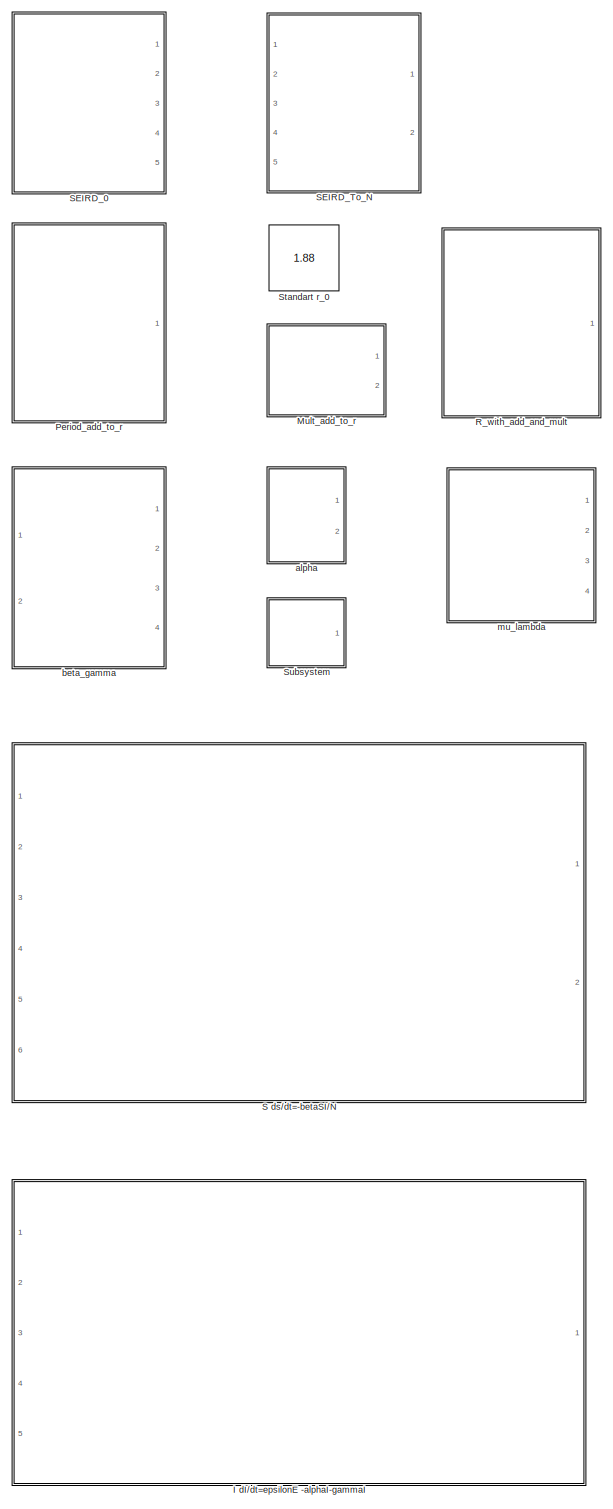
[diagram: root canvas - part 1/4, left side, full height]
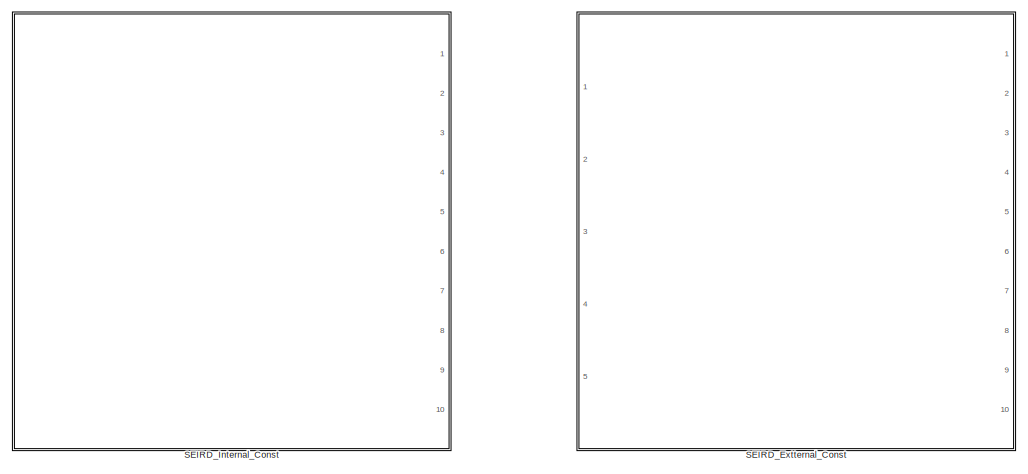
[diagram: root canvas - part 2/4, top right region]
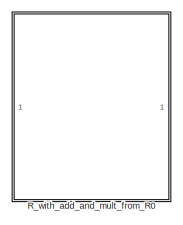
[diagram: root canvas - part 3/4, top left region]
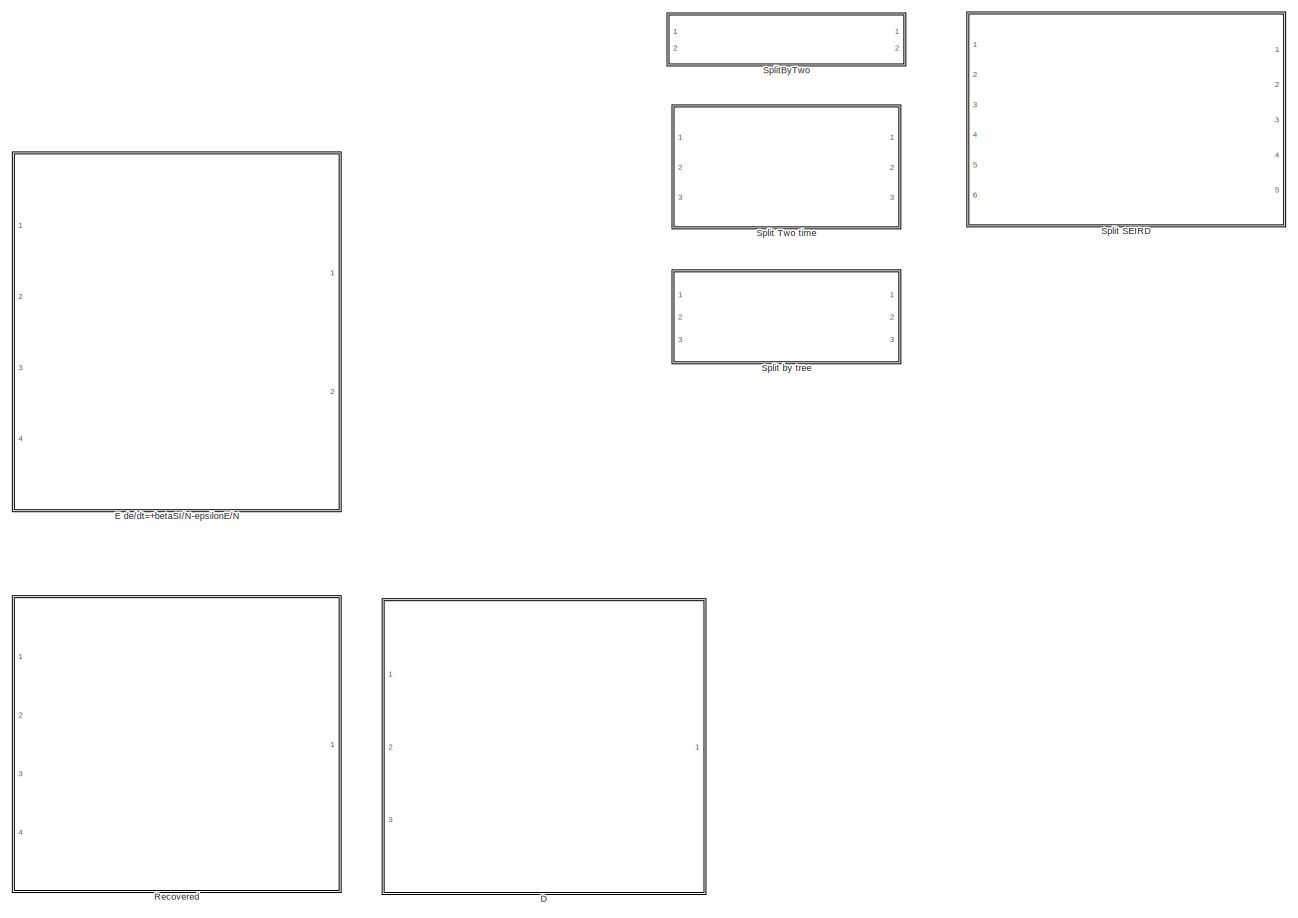
[diagram: root canvas - part 4/4, bottom center region]
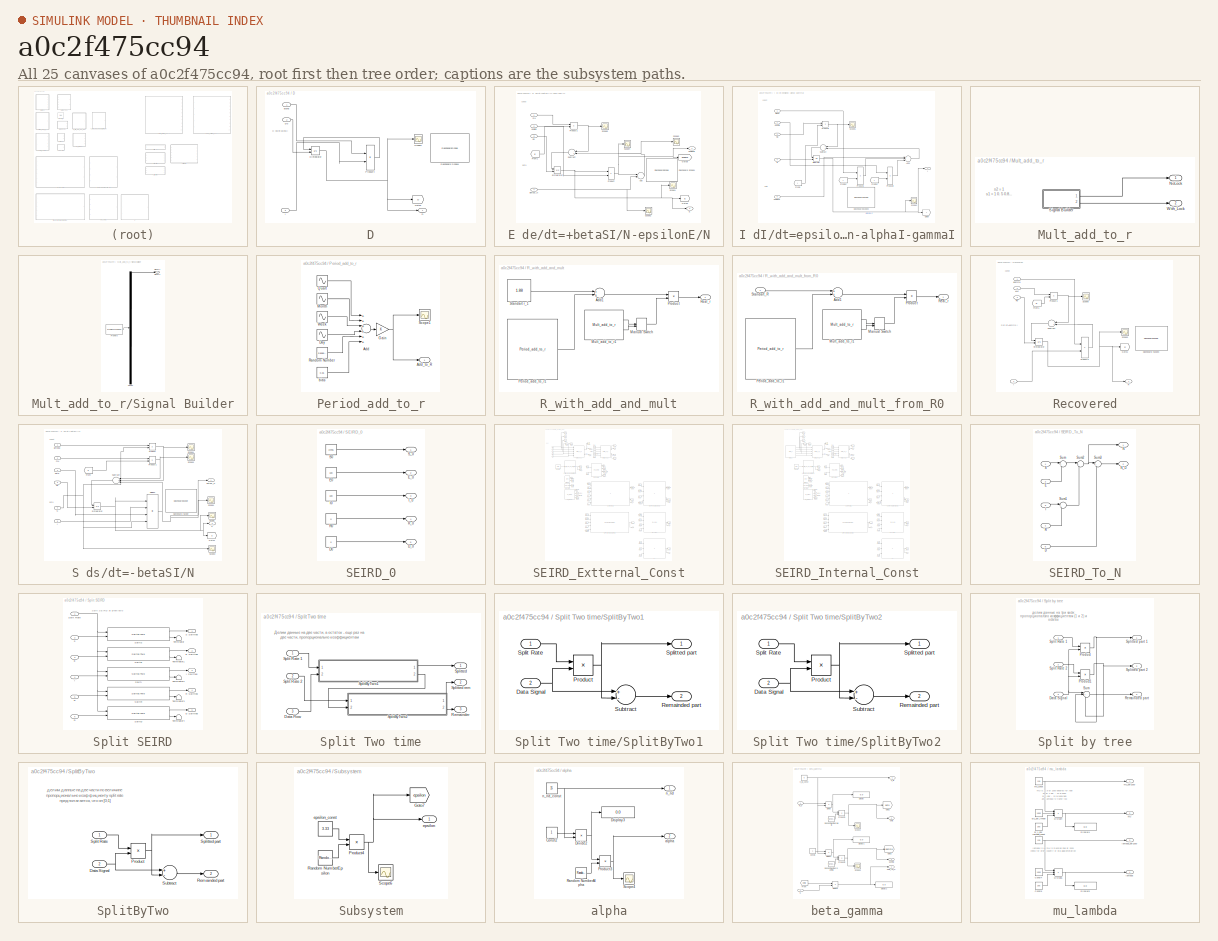
[diagram: thumbnail index - all 25 canvases of the model, root first then tree order]
MODEL slx_a0c2f475cc94
KIND library
CONFIG AbsTol = auto
CONFIG EnableMultiTasking = off
CONFIG FixedStep = auto
CONFIG MaxStep = auto
CONFIG MinStep = auto
CONFIG RelTol = 1e-3
CONFIG SampleTimeConstraint = Unconstrained
CONFIG Solver = VariableStepAuto
CONFIG SolverName = VariableStepAuto
CONFIG StartTime = 0.0
CONFIG StopTime = 10.0
BLOCK [SubSystem] D
  Ports = [3, 1]
  RequestExecContextInheritance = off
BLOCK [Outport] D/D
  IconDisplay = Port number
BLOCK [Inport] D/D0
  IconDisplay = Port number
  Port = 2
BLOCK [Integrator] D/DIntegrator
  InitialConditionSource = external
  Ports = [2, 1]
BLOCK [DashboardScope] D/Dashboard Scope4
  Ymax = 150e6
BLOCK [Goto] D/Goto2
  GotoTag = D
BLOCK [Inport] D/I
  IconDisplay = Port number
  Port = 3
BLOCK [Product] D/Product4
  InputSameDT = off
  Inputs = **
  OutDataTypeStr = Inherit: Inherit via internal rule
  Ports = [2, 1]
  RndMeth = Floor
  SaturateOnIntegerOverflow = off
BLOCK [Scope] D/Scope4
  Floating = off
  NumInputPorts = 1
  Ports = [1]
  ScopeSpecificationString = Simulink.scopes.TimeScopeBlockCfg('CurrentConfiguration', extmgr.ConfigurationSet(extmgr.Configuration('Core','General UI',true),extmgr.Configuration('Core','Source UI',true),extmgr.Configuration('Sources','WiredSimulink',true,'DataLoggingVariableName','ScopeData3'),extmgr.Configuration('Visuals','Time Domain',true,'SerializedDisplays',{struct('MinYLimReal','-5731670.32772','MaxYLimReal','51585032...<+1494ch>
BLOCK [Inport] D/alpha
  IconDisplay = Port number
BLOCK [SubSystem] E de//dt=+betaSI//N-epsilonE//N
  Ports = [4, 2]
  RequestExecContextInheritance = off
BLOCK [Sum] E de//dt=+betaSI//N-epsilonE//N/Add
  InputSameDT = off
  Inputs = -+
  OutDataTypeStr = Inherit: Inherit via internal rule
  Ports = [2, 1]
  SaturateOnIntegerOverflow = off
BLOCK [Inport] E de//dt=+betaSI//N-epsilonE//N/BetaSI_N
  IconDisplay = Port number
  Port = 4
BLOCK [DashboardScope] E de//dt=+betaSI//N-epsilonE//N/Dashboard Scope1
BLOCK [Outport] E de//dt=+betaSI//N-epsilonE//N/E
  IconDisplay = Port number
  Port = 2
BLOCK [Inport] E de//dt=+betaSI//N-epsilonE//N/E0
  IconDisplay = Port number
  Port = 3
BLOCK [Integrator] E de//dt=+betaSI//N-epsilonE//N/EIntegrator
  InitialConditionSource = external
  Ports = [2, 1]
BLOCK [From] E de//dt=+betaSI//N-epsilonE//N/From1
  GotoTag = E
BLOCK [Goto] E de//dt=+betaSI//N-epsilonE//N/Goto6
  GotoTag = E
BLOCK [Goto] E de//dt=+betaSI//N-epsilonE//N/Goto8
  GotoTag = EpsilonE
BLOCK [Product] E de//dt=+betaSI//N-epsilonE//N/Product
  InputSameDT = off
  Inputs = **
  OutDataTypeStr = Inherit: Inherit via internal rule
  Ports = [2, 1]
  RndMeth = Floor
  SaturateOnIntegerOverflow = off
BLOCK [Product] E de//dt=+betaSI//N-epsilonE//N/Product1
  InputSameDT = off
  OutDataTypeStr = Inherit: Inherit via internal rule
  Ports = [2, 1]
  RndMeth = Floor
  SaturateOnIntegerOverflow = off
BLOCK [Scope] E de//dt=+betaSI//N-epsilonE//N/Scope1
  Floating = off
  NumInputPorts = 1
  Ports = [1]
  ScopeSpecificationString = Simulink.scopes.TimeScopeBlockCfg('CurrentConfiguration', extmgr.ConfigurationSet(extmgr.Configuration('Core','General UI',true),extmgr.Configuration('Core','Source UI',true),extmgr.Configuration('Sources','WiredSimulink',true,'DataLoggingVariableName','ScopeData4'),extmgr.Configuration('Visuals','Time Domain',true,'SerializedDisplays',{struct('MinYLimReal','-78351.64941','MaxYLimReal','705165.409...<+1474ch>
BLOCK [Scope] E de//dt=+betaSI//N-epsilonE//N/Scope2
  Floating = off
  NumInputPorts = 1
  Ports = [1]
  ScopeSpecificationString = Simulink.scopes.TimeScopeBlockCfg('CurrentConfiguration', extmgr.ConfigurationSet(extmgr.Configuration('Core','General UI',true),extmgr.Configuration('Core','Source UI',true),extmgr.Configuration('Sources','WiredSimulink',true,'DataLoggingVariableName','ScopeData5'),extmgr.Configuration('Visuals','Time Domain',true,'SerializedDisplays',{struct('MinYLimReal','-260952.34792','MaxYLimReal','2348570.7...<+1517ch>
BLOCK [Scope] E de//dt=+betaSI//N-epsilonE//N/Scope3
  Floating = off
  NumInputPorts = 1
  Ports = [1]
  ScopeSpecificationString = Simulink.scopes.TimeScopeBlockCfg('CurrentConfiguration', extmgr.ConfigurationSet(extmgr.Configuration('Core','General UI',true),extmgr.Configuration('Core','Source UI',true),extmgr.Configuration('Sources','WiredSimulink',true,'DataLoggingVariableName','ScopeData6'),extmgr.Configuration('Visuals','Time Domain',true,'SerializedDisplays',{struct('MinYLimReal','-27893.67248','MaxYLimReal','29326.4634...<+1501ch>
BLOCK [Scope] E de//dt=+betaSI//N-epsilonE//N/Scope4
  Floating = off
  NumInputPorts = 1
  Ports = [1]
  ScopeSpecificationString = Simulink.scopes.TimeScopeBlockCfg('CurrentConfiguration', extmgr.ConfigurationSet(extmgr.Configuration('Core','General UI',true),extmgr.Configuration('Core','Source UI',true),extmgr.Configuration('Sources','WiredSimulink',true,'DataLoggingVariableName','ScopeData7'),extmgr.Configuration('Visuals','Time Domain',true,'SerializedDisplays',{struct('MinYLimReal','-260910.99253','MaxYLimReal','2348200.8...<+1517ch>
BLOCK [Scope] E de//dt=+betaSI//N-epsilonE//N/Scope5
  Floating = off
  NumInputPorts = 1
  Ports = [1]
  ScopeSpecificationString = Simulink.scopes.TimeScopeBlockCfg('CurrentConfiguration', extmgr.ConfigurationSet(extmgr.Configuration('Core','General UI',true),extmgr.Configuration('Core','Source UI',true),extmgr.Configuration('Sources','WiredSimulink',true,'DataLoggingVariableName','ScopeData8'),extmgr.Configuration('Visuals','Time Domain',true,'SerializedDisplays',{struct('MinYLimReal','-2.76923','MaxYLimReal','24.92311','YLa...<+1480ch>
BLOCK [Sum] E de//dt=+betaSI//N-epsilonE//N/Subtract
  InputSameDT = off
  Inputs = -+
  OutDataTypeStr = Inherit: Inherit via internal rule
  Ports = [2, 1]
  SaturateOnIntegerOverflow = off
BLOCK [Inport] E de//dt=+betaSI//N-epsilonE//N/epsilon
  IconDisplay = Port number
  Port = 2
BLOCK [Outport] E de//dt=+betaSI//N-epsilonE//N/epsilonE
  IconDisplay = Port number
BLOCK [Inport] E de//dt=+betaSI//N-epsilonE//N/mu
  IconDisplay = Port number
BLOCK [SubSystem] I dI//dt=epsilonE -alphaI-gammaI
  Ports = [5, 1]
  RequestExecContextInheritance = off
BLOCK [Sum] I dI//dt=epsilonE -alphaI-gammaI/Add1
  InputSameDT = off
  Inputs = +--
  OutDataTypeStr = Inherit: Inherit via internal rule
  Ports = [3, 1]
  SaturateOnIntegerOverflow = off
BLOCK [DashboardScope] I dI//dt=epsilonE -alphaI-gammaI/Dashboard Scope2
  Ymax = 150e6
BLOCK [From] I dI//dt=epsilonE -alphaI-gammaI/From1
  GotoTag = I
BLOCK [From] I dI//dt=epsilonE -alphaI-gammaI/From10
  GotoTag = I
BLOCK [From] I dI//dt=epsilonE -alphaI-gammaI/From12
  GotoTag = I
BLOCK [Goto] I dI//dt=epsilonE -alphaI-gammaI/Goto9
  GotoTag = I
BLOCK [Outport] I dI//dt=epsilonE -alphaI-gammaI/I
  IconDisplay = Port number
BLOCK [Inport] I dI//dt=epsilonE -alphaI-gammaI/I0
  IconDisplay = Port number
  Port = 4
BLOCK [Integrator] I dI//dt=epsilonE -alphaI-gammaI/IIntegrator
  InitialConditionSource = external
  Ports = [2, 1]
BLOCK [Product] I dI//dt=epsilonE -alphaI-gammaI/Product1
  InputSameDT = off
  Inputs = **
  OutDataTypeStr = Inherit: Inherit via internal rule
  Ports = [2, 1]
  RndMeth = Floor
  SaturateOnIntegerOverflow = off
BLOCK [Product] I dI//dt=epsilonE -alphaI-gammaI/Product2
  InputSameDT = off
  Inputs = **
  OutDataTypeStr = Inherit: Inherit via internal rule
  Ports = [2, 1]
  RndMeth = Floor
  SaturateOnIntegerOverflow = off
BLOCK [Product] I dI//dt=epsilonE -alphaI-gammaI/Product3
  InputSameDT = off
  OutDataTypeStr = Inherit: Inherit via internal rule
  Ports = [2, 1]
  RndMeth = Floor
  SaturateOnIntegerOverflow = off
BLOCK [Scope] I dI//dt=epsilonE -alphaI-gammaI/Scope2
  Floating = off
  NumInputPorts = 1
  Ports = [1]
  ScopeSpecificationString = Simulink.scopes.TimeScopeBlockCfg('CurrentConfiguration', extmgr.ConfigurationSet(extmgr.Configuration('Core','General UI',true),extmgr.Configuration('Core','Source UI',true),extmgr.Configuration('Sources','WiredSimulink',true,'DataLoggingVariableName','ScopeData10'),extmgr.Configuration('Visuals','Time Domain',true,'SerializedDisplays',{struct('MinYLimReal','-241701.94871','MaxYLimReal','2176317....<+1716ch>
BLOCK [Scope] I dI//dt=epsilonE -alphaI-gammaI/Scope5
  Floating = off
  NumInputPorts = 1
  Ports = [1]
  ScopeSpecificationString = Simulink.scopes.TimeScopeBlockCfg('CurrentConfiguration', extmgr.ConfigurationSet(extmgr.Configuration('Core','General UI',true),extmgr.Configuration('Core','Source UI',true),extmgr.Configuration('Sources','WiredSimulink',true,'DataLoggingVariableName','ScopeData11'),extmgr.Configuration('Visuals','Time Domain',true,'SerializedDisplays',{struct('MinYLimReal','-33.58911','MaxYLimReal','302.30188','...<+1487ch>
BLOCK [Sum] I dI//dt=epsilonE -alphaI-gammaI/Subtract
  InputSameDT = off
  Inputs = -+
  OutDataTypeStr = Inherit: Inherit via internal rule
  Ports = [2, 1]
  SaturateOnIntegerOverflow = off
BLOCK [Inport] I dI//dt=epsilonE -alphaI-gammaI/alpha
  IconDisplay = Port number
BLOCK [Inport] I dI//dt=epsilonE -alphaI-gammaI/epsilonE
  IconDisplay = Port number
  Port = 5
BLOCK [Inport] I dI//dt=epsilonE -alphaI-gammaI/gamma
  IconDisplay = Port number
  Port = 2
BLOCK [Inport] I dI//dt=epsilonE -alphaI-gammaI/mu
  IconDisplay = Port number
  Port = 3
BLOCK [SubSystem] Mult_add_to_r
  Ports = [0, 2]
  RequestExecContextInheritance = off
BLOCK [Outport] Mult_add_to_r/NoLock
  IconDisplay = Port number
BLOCK [SubSystem] Mult_add_to_r/Signal Builder
  ClipboardFcn = sigbuilder_block('clipboard');
  CloseFcn = sigbuilder_block('close');
  ContinueFcn = sigbuilder_block('continue');
  CopyFcn = sigbuilder_block('copy');
  DeleteFcn = sigbuilder_block('delete');
  LoadFcn = sigbuilder_block('load');
  MaskHideContents = on
  ModelCloseFcn = sigbuilder_block('modelClose');
  NameChangeFcn = sigbuilder_block('namechange');
  OpenFcn = sigbuilder_block('open',[437.6 199.2 550.4 400 ]);
  PauseFcn = sigbuilder_block('pause');
  Ports = [0, 2]
  PreSaveFcn = sigbuilder_block('preSave');
  RequestExecContextInheritance = off
  StartFcn = sigbuilder_block('start');
  StopFcn = sigbuilder_block('stop');
  Tag = STV Subsys
BLOCK [Demux] Mult_add_to_r/Signal Builder/Demux
  Outputs = 2
  Ports = [1, 2]
  Tag = STV Demux
BLOCK [FromWorkspace] Mult_add_to_r/Signal Builder/FromWs
  SampleTime = 0
  Tag = STV FromWs
  VariableName = tuvar
  ZeroCross = on
BLOCK [Outport] Mult_add_to_r/Signal Builder/Signal 1
  IconDisplay = Port number
  Port = 2
  Tag = STV Outport
BLOCK [Outport] Mult_add_to_r/Signal Builder/Signal 2
  IconDisplay = Port number
  Tag = STV Outport
BLOCK [Outport] Mult_add_to_r/With_Lock
  IconDisplay = Port number
  Port = 2
BLOCK [SubSystem] Period_add_to_r
  Ports = [0, 1]
  RequestExecContextInheritance = off
BLOCK [Sum] Period_add_to_r/Add
  InputSameDT = off
  Inputs = ++++++
  OutDataTypeStr = Inherit: Inherit via internal rule
  Ports = [6, 1]
  SaturateOnIntegerOverflow = off
BLOCK [Outport] Period_add_to_r/Add_to_R
  IconDisplay = Port number
BLOCK [Sin] Period_add_to_r/Day
  Amplitude = 0.12*2
  Frequency = 2*pi/7
  Ports = [0, 1]
  SampleTime = 0
BLOCK [Gain] Period_add_to_r/Gain
  OutDataTypeStr = Inherit: Inherit via internal rule
  ParamDataTypeStr = Inherit: Inherit via internal rule
  SaturateOnIntegerOverflow = off
BLOCK [Sin] Period_add_to_r/Month
  Amplitude = 0.12
  Frequency = 2*pi/30
  Ports = [0, 1]
  SampleTime = 0
BLOCK [Sin] Period_add_to_r/Quart
  Amplitude = 0.12
  Frequency = 2*pi/120
  Ports = [0, 1]
  SampleTime = 0
BLOCK [RandomNumber] Period_add_to_r/Random Number
  SampleTime = 0.1
  Variance = 0.0144
BLOCK [Scope] Period_add_to_r/Scope1
  Floating = off
  NumInputPorts = 1
  Ports = [1]
  ScopeSpecificationString = Simulink.scopes.TimeScopeBlockCfg('CurrentConfiguration', extmgr.ConfigurationSet(extmgr.Configuration('Core','General UI',true),extmgr.Configuration('Core','Source UI',true),extmgr.Configuration('Sources','WiredSimulink',true),extmgr.Configuration('Visuals','Time Domain',true,'SerializedDisplays',{struct('MinYLimReal','-0.16978','MaxYLimReal','0.35553','YLabelReal','','MinYLimMag','0.00000','MaxY...<+1398ch>
BLOCK [Sin] Period_add_to_r/Week
  Amplitude = 0.12
  Frequency = 2*pi/7
  Ports = [0, 1]
  SampleTime = 0
BLOCK [Constant] Period_add_to_r/bias
  Value = 0.25
BLOCK [SubSystem] R_with_add_and_mult
  Ports = [0, 1]
  RequestExecContextInheritance = off
BLOCK [Sum] R_with_add_and_mult/Add1
  InputSameDT = off
  OutDataTypeStr = Inherit: Inherit via internal rule
  Ports = [2, 1]
  SaturateOnIntegerOverflow = off
BLOCK [ManualSwitch] R_with_add_and_mult/Manual Switch
BLOCK [Reference] R_with_add_and_mult/Mult_add_to_r1  REF=$bdroot/Mult_add_to_r
  Ports = [0, 2]
  SourceBlock = $bdroot/Mult_add_to_r
  SourceType = SubSystem
BLOCK [Reference] R_with_add_and_mult/Period_add_to_r1  REF=$bdroot/Period_add_to_r
  Ports = [0, 1]
  SourceBlock = $bdroot/Period_add_to_r
  SourceType = SubSystem
BLOCK [Product] R_with_add_and_mult/Product
  InputSameDT = off
  OutDataTypeStr = Inherit: Inherit via internal rule
  Ports = [2, 1]
  RndMeth = Floor
  SaturateOnIntegerOverflow = off
BLOCK [Outport] R_with_add_and_mult/Real_r
  IconDisplay = Port number
BLOCK [Constant] R_with_add_and_mult/Standart r_1
  Value = 1.88
BLOCK [SubSystem] R_with_add_and_mult_from_R0
  Ports = [1, 1]
  RequestExecContextInheritance = off
BLOCK [Sum] R_with_add_and_mult_from_R0/Add1
  InputSameDT = off
  OutDataTypeStr = Inherit: Inherit via internal rule
  Ports = [2, 1]
  SaturateOnIntegerOverflow = off
BLOCK [ManualSwitch] R_with_add_and_mult_from_R0/Manual Switch
BLOCK [Reference] R_with_add_and_mult_from_R0/Mult_add_to_r1  REF=$bdroot/Mult_add_to_r
  Ports = [0, 2]
  SourceBlock = $bdroot/Mult_add_to_r
  SourceType = SubSystem
BLOCK [Reference] R_with_add_and_mult_from_R0/Period_add_to_r1  REF=$bdroot/Period_add_to_r
  Ports = [0, 1]
  SourceBlock = $bdroot/Period_add_to_r
  SourceType = SubSystem
BLOCK [Product] R_with_add_and_mult_from_R0/Product
  InputSameDT = off
  OutDataTypeStr = Inherit: Inherit via internal rule
  Ports = [2, 1]
  RndMeth = Floor
  SaturateOnIntegerOverflow = off
BLOCK [Outport] R_with_add_and_mult_from_R0/Real_r
  IconDisplay = Port number
BLOCK [Inport] R_with_add_and_mult_from_R0/Standart_R
  IconDisplay = Port number
BLOCK [SubSystem] Recovered
  Ports = [4, 1]
  RequestExecContextInheritance = off
BLOCK [DashboardScope] Recovered/Dashboard Scope3
BLOCK [From] Recovered/From1
  GotoTag = R
BLOCK [Goto] Recovered/Goto1
  GotoTag = R
BLOCK [Inport] Recovered/I
  IconDisplay = Port number
  Port = 4
BLOCK [Product] Recovered/Product1
  InputSameDT = off
  OutDataTypeStr = Inherit: Inherit via internal rule
  Ports = [2, 1]
  RndMeth = Floor
  SaturateOnIntegerOverflow = off
BLOCK [Product] Recovered/Product3
  InputSameDT = off
  Inputs = **
  OutDataTypeStr = Inherit: Inherit via internal rule
  Ports = [2, 1]
  RndMeth = Floor
  SaturateOnIntegerOverflow = off
BLOCK [Outport] Recovered/R
  IconDisplay = Port number
BLOCK [Inport] Recovered/R0
  IconDisplay = Port number
  Port = 3
BLOCK [Integrator] Recovered/RIntegrator
  InitialConditionSource = external
  Ports = [2, 1]
BLOCK [Scope] Recovered/Scope3
  Floating = off
  NumInputPorts = 1
  Ports = [1]
  ScopeSpecificationString = Simulink.scopes.TimeScopeBlockCfg('CurrentConfiguration', extmgr.ConfigurationSet(extmgr.Configuration('Core','General UI',true),extmgr.Configuration('Core','Source UI',true),extmgr.Configuration('Sources','WiredSimulink',true,'DataLoggingVariableName','ScopeData1'),extmgr.Configuration('Visuals','Time Domain',true,'SerializedDisplays',{struct('MinYLimReal','-14355695.80734','MaxYLimReal','1292012...<+1502ch>
BLOCK [Scope] Recovered/Scope5
  Floating = off
  NumInputPorts = 1
  Ports = [1]
  ScopeSpecificationString = Simulink.scopes.TimeScopeBlockCfg('CurrentConfiguration', extmgr.ConfigurationSet(extmgr.Configuration('Core','General UI',true),extmgr.Configuration('Core','Source UI',true),extmgr.Configuration('Sources','WiredSimulink',true,'DataLoggingVariableName','ScopeData2'),extmgr.Configuration('Visuals','Time Domain',true,'SerializedDisplays',{struct('MinYLimReal','-291.48677','MaxYLimReal','2623.38096',...<+1494ch>
BLOCK [Sum] Recovered/Subtract
  InputSameDT = off
  Inputs = -+
  OutDataTypeStr = Inherit: Inherit via internal rule
  Ports = [2, 1]
  SaturateOnIntegerOverflow = off
BLOCK [Inport] Recovered/gamma
  IconDisplay = Port number
BLOCK [Inport] Recovered/mu
  IconDisplay = Port number
  Port = 2
BLOCK [SubSystem] S ds//dt=-betaSI//N
  Ports = [6, 2]
  RequestExecContextInheritance = off
BLOCK [DashboardScope] S ds//dt=-betaSI//N/Dashboard Scope
  Ymax = 150e6
BLOCK [Product] S ds//dt=-betaSI//N/Divide2
  InputSameDT = off
  Inputs = ***/
  OutDataTypeStr = Inherit: Inherit via internal rule
  Ports = [4, 1]
  RndMeth = Floor
  SaturateOnIntegerOverflow = off
BLOCK [From] S ds//dt=-betaSI//N/From
  GotoTag = S
BLOCK [Goto] S ds//dt=-betaSI//N/Goto4
  GotoTag = S
BLOCK [Inport] S ds//dt=-betaSI//N/I
  IconDisplay = Port number
  Port = 6
BLOCK [Inport] S ds//dt=-betaSI//N/N
  IconDisplay = Port number
  Port = 4
BLOCK [Product] S ds//dt=-betaSI//N/Product
  InputSameDT = off
  OutDataTypeStr = Inherit: Inherit via internal rule
  Ports = [2, 1]
  RndMeth = Floor
  SaturateOnIntegerOverflow = off
BLOCK [Product] S ds//dt=-betaSI//N/Product1
  InputSameDT = off
  OutDataTypeStr = Inherit: Inherit via internal rule
  Ports = [2, 1]
  RndMeth = Floor
  SaturateOnIntegerOverflow = off
BLOCK [Outport] S ds//dt=-betaSI//N/S
  IconDisplay = Port number
  Port = 2
BLOCK [Inport] S ds//dt=-betaSI//N/S0
  IconDisplay = Port number
  Port = 5
BLOCK [Integrator] S ds//dt=-betaSI//N/SIntegrator
  InitialConditionSource = external
  Ports = [2, 1]
BLOCK [Scope] S ds//dt=-betaSI//N/Scope
  Floating = off
  NumInputPorts = 1
  Ports = [1]
  ScopeSpecificationString = Simulink.scopes.TimeScopeBlockCfg('CurrentConfiguration', extmgr.ConfigurationSet(extmgr.Configuration('Core','General UI',true),extmgr.Configuration('Core','Source UI',true),extmgr.Configuration('Sources','WiredSimulink',true),extmgr.Configuration('Visuals','Time Domain',true,'SerializedDisplays',{struct('MinYLimReal','47937422.66117','MaxYLimReal','158006953.03765','YLabelReal','','MinYLimMag','...<+1414ch>
BLOCK [Scope] S ds//dt=-betaSI//N/Scope1
  Floating = off
  NumInputPorts = 1
  Ports = [1]
  ScopeSpecificationString = Simulink.scopes.TimeScopeBlockCfg('CurrentConfiguration', extmgr.ConfigurationSet(extmgr.Configuration('Core','General UI',true),extmgr.Configuration('Core','Source UI',true),extmgr.Configuration('Sources','WiredSimulink',true,'DataLoggingVariableName','ScopeData2'),extmgr.Configuration('Visuals','Time Domain',true,'SerializedDisplays',{struct('MinYLimReal','-260901.94537','MaxYLimReal','2348117.1...<+1463ch>
BLOCK [Scope] S ds//dt=-betaSI//N/Scope2
  Floating = off
  NumInputPorts = 1
  Ports = [1]
  ScopeSpecificationString = Simulink.scopes.TimeScopeBlockCfg('CurrentConfiguration', extmgr.ConfigurationSet(extmgr.Configuration('Core','General UI',true),extmgr.Configuration('Core','Source UI',true),extmgr.Configuration('Sources','WiredSimulink',true,'DataLoggingVariableName','ScopeData3'),extmgr.Configuration('Visuals','Time Domain',true,'SerializedDisplays',{struct('MinYLimReal','122168575.09142','MaxYLimReal','1497592...<+1450ch>
BLOCK [Scope] S ds//dt=-betaSI//N/Scope3
  Floating = off
  NumInputPorts = 1
  Ports = [1]
  ScopeSpecificationString = Simulink.scopes.TimeScopeBlockCfg('CurrentConfiguration', extmgr.ConfigurationSet(extmgr.Configuration('Core','General UI',true),extmgr.Configuration('Core','Source UI',true),extmgr.Configuration('Sources','WiredSimulink',true,'DataLoggingVariableName','ScopeData1'),extmgr.Configuration('Visuals','Time Domain',true,'SerializedDisplays',{struct('MinYLimReal','1694.22672','MaxYLimReal','5584.35533',...<+1444ch>
BLOCK [Scope] S ds//dt=-betaSI//N/Scope4
  Floating = off
  NumInputPorts = 1
  Ports = [1]
  ScopeSpecificationString = Simulink.scopes.TimeScopeBlockCfg('CurrentConfiguration', extmgr.ConfigurationSet(extmgr.Configuration('Core','General UI',true),extmgr.Configuration('Core','Source UI',true),extmgr.Configuration('Sources','WiredSimulink',true,'DataLoggingVariableName','ScopeData2'),extmgr.Configuration('Visuals','Time Domain',true,'SerializedDisplays',{struct('MinYLimReal','4317.73868','MaxYLimReal','5292.86185',...<+1443ch>
BLOCK [Sum] S ds//dt=-betaSI//N/Subtract
  InputSameDT = off
  Inputs = -+-
  OutDataTypeStr = Inherit: Inherit via internal rule
  Ports = [3, 1]
  SaturateOnIntegerOverflow = off
BLOCK [Inport] S ds//dt=-betaSI//N/beta
  IconDisplay = Port number
  Port = 3
BLOCK [Outport] S ds//dt=-betaSI//N/betaSI_N
  IconDisplay = Port number
BLOCK [Inport] S ds//dt=-betaSI//N/lambda
  IconDisplay = Port number
BLOCK [Inport] S ds//dt=-betaSI//N/mu
  IconDisplay = Port number
  Port = 2
BLOCK [SubSystem] SEIRD_0
  Ports = [0, 5]
  RequestExecContextInheritance = off
BLOCK [Constant] SEIRD_0/D0
  Value = 0
BLOCK [Outport] SEIRD_0/D_0
  IconDisplay = Port number
  Port = 5
BLOCK [Constant] SEIRD_0/E0
  Value = 100
BLOCK [Outport] SEIRD_0/E_0
  IconDisplay = Port number
  Port = 2
BLOCK [Constant] SEIRD_0/I0
  Value = 100
BLOCK [Outport] SEIRD_0/I_0
  IconDisplay = Port number
  Port = 3
BLOCK [Constant] SEIRD_0/R0
  Value = 0
BLOCK [Outport] SEIRD_0/R_0
  IconDisplay = Port number
  Port = 4
BLOCK [Constant] SEIRD_0/S0
  Value = 147e6
BLOCK [Outport] SEIRD_0/S_0
  IconDisplay = Port number
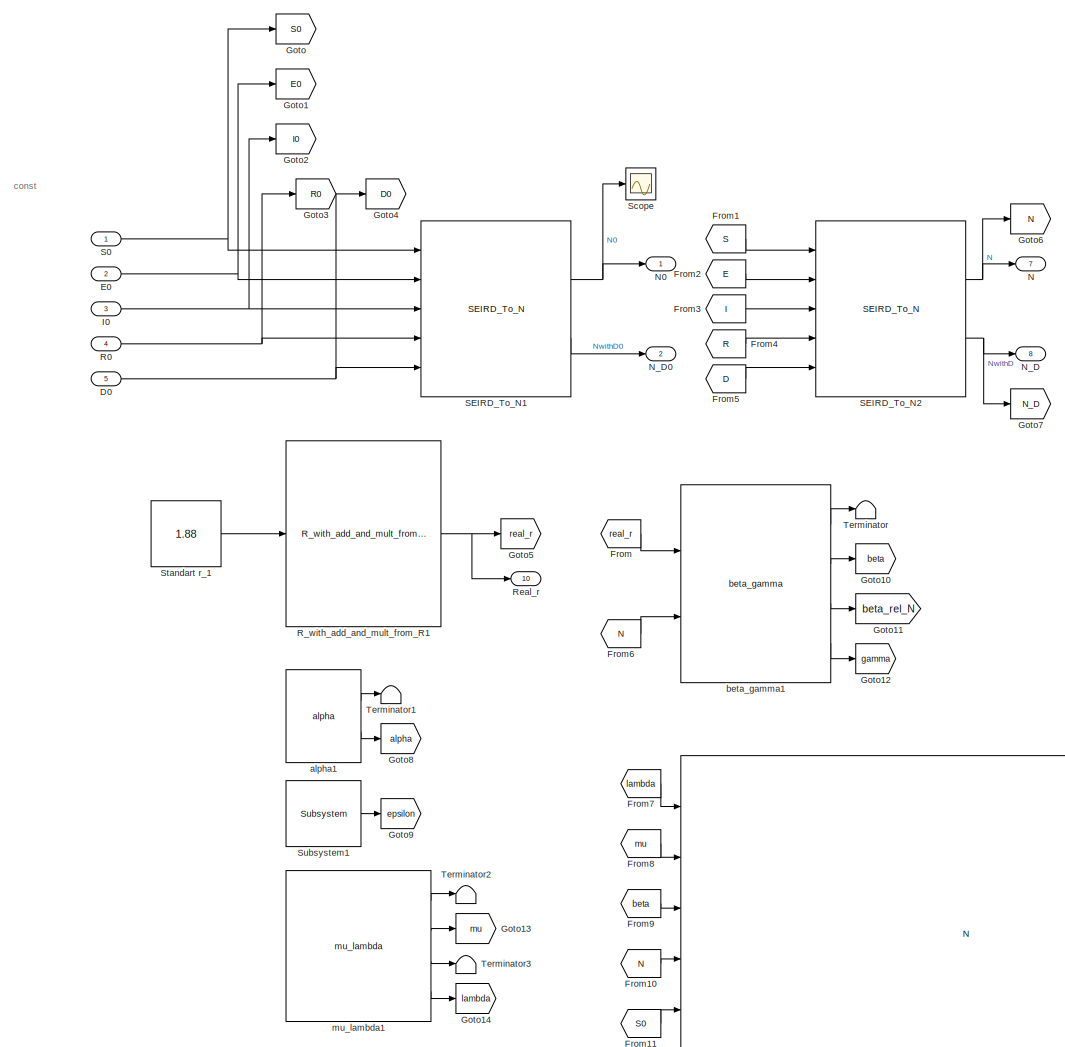
[diagram: SEIRD_Extternal_Const - part 1/3, top left region]
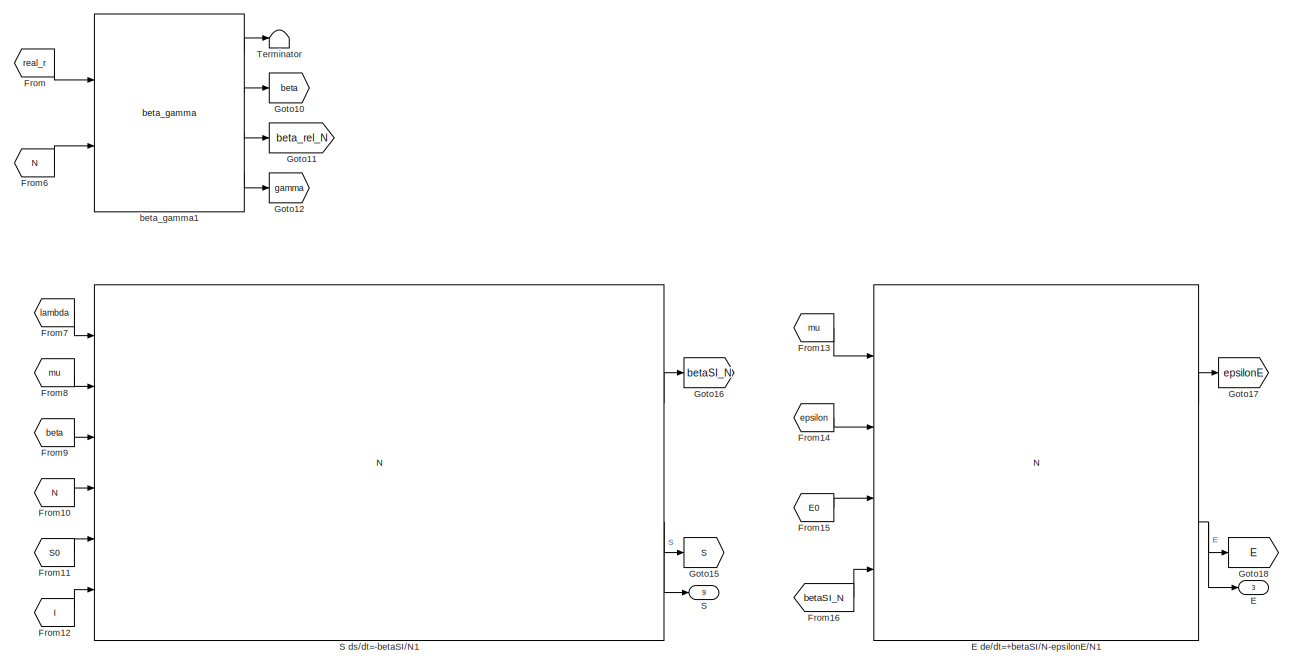
[diagram: SEIRD_Extternal_Const - part 2/3, central region]
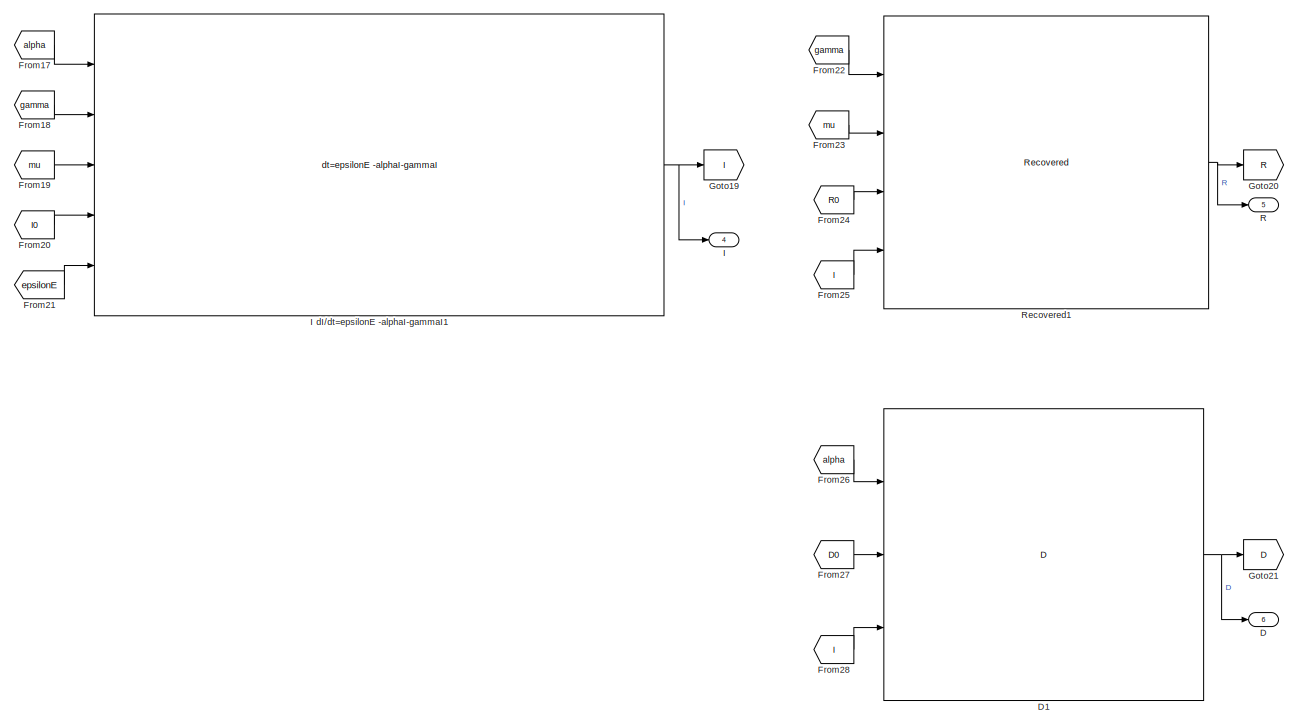
[diagram: SEIRD_Extternal_Const - part 3/3, bottom center region]
BLOCK [SubSystem] SEIRD_Extternal_Const
  AncestorBlock = SEIR_Lib/SEIRD_Internal_Const
  Ports = [5, 10]
  RequestExecContextInheritance = off
BLOCK [Outport] SEIRD_Extternal_Const/D
  IconDisplay = Port number
  Port = 6
BLOCK [Inport] SEIRD_Extternal_Const/D0
  IconDisplay = Port number
  Port = 5
BLOCK [Reference] SEIRD_Extternal_Const/D1  REF=$bdroot/D
  Ports = [3, 1]
  SourceBlock = $bdroot/D
  SourceType = SubSystem
BLOCK [Outport] SEIRD_Extternal_Const/E
  IconDisplay = Port number
  Port = 3
BLOCK [Reference] SEIRD_Extternal_Const/E de//dt=+betaSI//N-epsilonE//N1  REF=$bdroot/E de//dt=+betaSI//N-epsilonE//N
  Ports = [4, 2]
  SourceBlock = $bdroot/E de//dt=+betaSI//N-epsilonE//N
  SourceType = SubSystem
BLOCK [Inport] SEIRD_Extternal_Const/E0
  IconDisplay = Port number
  Port = 2
BLOCK [From] SEIRD_Extternal_Const/From
  GotoTag = real_r
BLOCK [From] SEIRD_Extternal_Const/From1
  GotoTag = S
BLOCK [From] SEIRD_Extternal_Const/From10
  GotoTag = N
BLOCK [From] SEIRD_Extternal_Const/From11
  GotoTag = S0
BLOCK [From] SEIRD_Extternal_Const/From12
  GotoTag = I
BLOCK [From] SEIRD_Extternal_Const/From13
  GotoTag = mu
BLOCK [From] SEIRD_Extternal_Const/From14
  GotoTag = epsilon
BLOCK [From] SEIRD_Extternal_Const/From15
  GotoTag = E0
BLOCK [From] SEIRD_Extternal_Const/From16
  GotoTag = betaSI_N
BLOCK [From] SEIRD_Extternal_Const/From17
  GotoTag = alpha
BLOCK [From] SEIRD_Extternal_Const/From18
  GotoTag = gamma
BLOCK [From] SEIRD_Extternal_Const/From19
  GotoTag = mu
BLOCK [From] SEIRD_Extternal_Const/From2
  GotoTag = E
BLOCK [From] SEIRD_Extternal_Const/From20
  GotoTag = I0
BLOCK [From] SEIRD_Extternal_Const/From21
  GotoTag = epsilonE
BLOCK [From] SEIRD_Extternal_Const/From22
  GotoTag = gamma
BLOCK [From] SEIRD_Extternal_Const/From23
  GotoTag = mu
BLOCK [From] SEIRD_Extternal_Const/From24
  GotoTag = R0
BLOCK [From] SEIRD_Extternal_Const/From25
  GotoTag = I
BLOCK [From] SEIRD_Extternal_Const/From26
  GotoTag = alpha
BLOCK [From] SEIRD_Extternal_Const/From27
  GotoTag = D0
BLOCK [From] SEIRD_Extternal_Const/From28
  GotoTag = I
BLOCK [From] SEIRD_Extternal_Const/From3
  GotoTag = I
BLOCK [From] SEIRD_Extternal_Const/From4
  GotoTag = R
BLOCK [From] SEIRD_Extternal_Const/From5
  GotoTag = D
BLOCK [From] SEIRD_Extternal_Const/From6
  GotoTag = N
BLOCK [From] SEIRD_Extternal_Const/From7
  GotoTag = lambda
BLOCK [From] SEIRD_Extternal_Const/From8
  GotoTag = mu
BLOCK [From] SEIRD_Extternal_Const/From9
  GotoTag = beta
BLOCK [Goto] SEIRD_Extternal_Const/Goto
  GotoTag = S0
BLOCK [Goto] SEIRD_Extternal_Const/Goto1
  GotoTag = E0
BLOCK [Goto] SEIRD_Extternal_Const/Goto10
  GotoTag = beta
BLOCK [Goto] SEIRD_Extternal_Const/Goto11
  GotoTag = beta_rel_N
BLOCK [Goto] SEIRD_Extternal_Const/Goto12
  GotoTag = gamma
BLOCK [Goto] SEIRD_Extternal_Const/Goto13
  GotoTag = mu
BLOCK [Goto] SEIRD_Extternal_Const/Goto14
  GotoTag = lambda
BLOCK [Goto] SEIRD_Extternal_Const/Goto15
  GotoTag = S
BLOCK [Goto] SEIRD_Extternal_Const/Goto16
  GotoTag = betaSI_N
BLOCK [Goto] SEIRD_Extternal_Const/Goto17
  GotoTag = epsilonE
BLOCK [Goto] SEIRD_Extternal_Const/Goto18
  GotoTag = E
BLOCK [Goto] SEIRD_Extternal_Const/Goto19
  GotoTag = I
BLOCK [Goto] SEIRD_Extternal_Const/Goto2
  GotoTag = I0
BLOCK [Goto] SEIRD_Extternal_Const/Goto20
  GotoTag = R
BLOCK [Goto] SEIRD_Extternal_Const/Goto21
  GotoTag = D
BLOCK [Goto] SEIRD_Extternal_Const/Goto3
  GotoTag = R0
BLOCK [Goto] SEIRD_Extternal_Const/Goto4
  GotoTag = D0
BLOCK [Goto] SEIRD_Extternal_Const/Goto5
  GotoTag = real_r
BLOCK [Goto] SEIRD_Extternal_Const/Goto6
  GotoTag = N
BLOCK [Goto] SEIRD_Extternal_Const/Goto7
  GotoTag = N_D
BLOCK [Goto] SEIRD_Extternal_Const/Goto8
  GotoTag = alpha
BLOCK [Goto] SEIRD_Extternal_Const/Goto9
  GotoTag = epsilon
BLOCK [Outport] SEIRD_Extternal_Const/I
  IconDisplay = Port number
  Port = 4
BLOCK [Reference] SEIRD_Extternal_Const/I dI//dt=epsilonE -alphaI-gammaI1  REF=$bdroot/I dI//dt=epsilonE -alphaI-gammaI
  Ports = [5, 1]
  SourceBlock = $bdroot/I dI//dt=epsilonE -alphaI-gammaI
  SourceType = SubSystem
BLOCK [Inport] SEIRD_Extternal_Const/I0
  IconDisplay = Port number
  Port = 3
BLOCK [Outport] SEIRD_Extternal_Const/N
  IconDisplay = Port number
  Port = 7
BLOCK [Outport] SEIRD_Extternal_Const/N0
  IconDisplay = Port number
BLOCK [Outport] SEIRD_Extternal_Const/N_D
  IconDisplay = Port number
  Port = 8
BLOCK [Outport] SEIRD_Extternal_Const/N_D0
  IconDisplay = Port number
  Port = 2
BLOCK [Outport] SEIRD_Extternal_Const/R
  IconDisplay = Port number
  Port = 5
BLOCK [Inport] SEIRD_Extternal_Const/R0
  IconDisplay = Port number
  Port = 4
BLOCK [Reference] SEIRD_Extternal_Const/R_with_add_and_mult_from_R1  REF=$bdroot/R_with_add_and_mult_from_R0
  Ports = [1, 1]
  SourceBlock = $bdroot/R_with_add_and_mult_from_R0
  SourceType = SubSystem
BLOCK [Outport] SEIRD_Extternal_Const/Real_r
  IconDisplay = Port number
  Port = 10
BLOCK [Reference] SEIRD_Extternal_Const/Recovered1  REF=$bdroot/Recovered
  Ports = [4, 1]
  SourceBlock = $bdroot/Recovered
  SourceType = SubSystem
BLOCK [Outport] SEIRD_Extternal_Const/S
  IconDisplay = Port number
  Port = 9
BLOCK [Reference] SEIRD_Extternal_Const/S ds//dt=-betaSI//N1  REF=$bdroot/S ds//dt=-betaSI//N
  Ports = [6, 2]
  SourceBlock = $bdroot/S ds//dt=-betaSI//N
  SourceType = SubSystem
BLOCK [Inport] SEIRD_Extternal_Const/S0
  IconDisplay = Port number
BLOCK [Reference] SEIRD_Extternal_Const/SEIRD_To_N1  REF=$bdroot/SEIRD_To_N
  Ports = [5, 2]
  SourceBlock = $bdroot/SEIRD_To_N
  SourceType = SubSystem
BLOCK [Reference] SEIRD_Extternal_Const/SEIRD_To_N2  REF=$bdroot/SEIRD_To_N
  Ports = [5, 2]
  SourceBlock = $bdroot/SEIRD_To_N
  SourceType = SubSystem
BLOCK [Scope] SEIRD_Extternal_Const/Scope
  Floating = off
  NumInputPorts = 1
  Ports = [1]
  ScopeSpecificationString = Simulink.scopes.TimeScopeBlockCfg('CurrentConfiguration', extmgr.ConfigurationSet(extmgr.Configuration('Core','General UI',true),extmgr.Configuration('Core','Source UI',true),extmgr.Configuration('Sources','WiredSimulink',true,'DataLoggingVariableName','ScopeData1'),extmgr.Configuration('Visuals','Time Domain',true),extmgr.Configuration('Tools','Plot Navigation',true),extmgr.Configuration('Tools',...<+58ch>
BLOCK [Constant] SEIRD_Extternal_Const/Standart r_1
  Value = 1.88
BLOCK [Reference] SEIRD_Extternal_Const/Subsystem1  REF=$bdroot/Subsystem
  Ports = [0, 1]
  SourceBlock = $bdroot/Subsystem
  SourceType = SubSystem
BLOCK [Terminator] SEIRD_Extternal_Const/Terminator
BLOCK [Terminator] SEIRD_Extternal_Const/Terminator1
BLOCK [Terminator] SEIRD_Extternal_Const/Terminator2
BLOCK [Terminator] SEIRD_Extternal_Const/Terminator3
BLOCK [Reference] SEIRD_Extternal_Const/alpha1  REF=$bdroot/alpha
  Ports = [0, 2]
  SourceBlock = $bdroot/alpha
  SourceType = SubSystem
BLOCK [Reference] SEIRD_Extternal_Const/beta_gamma1  REF=$bdroot/beta_gamma
  Ports = [2, 4]
  SourceBlock = $bdroot/beta_gamma
  SourceType = SubSystem
BLOCK [Reference] SEIRD_Extternal_Const/mu_lambda1  REF=$bdroot/mu_lambda
  Ports = [0, 4]
  SourceBlock = $bdroot/mu_lambda
  SourceType = SubSystem
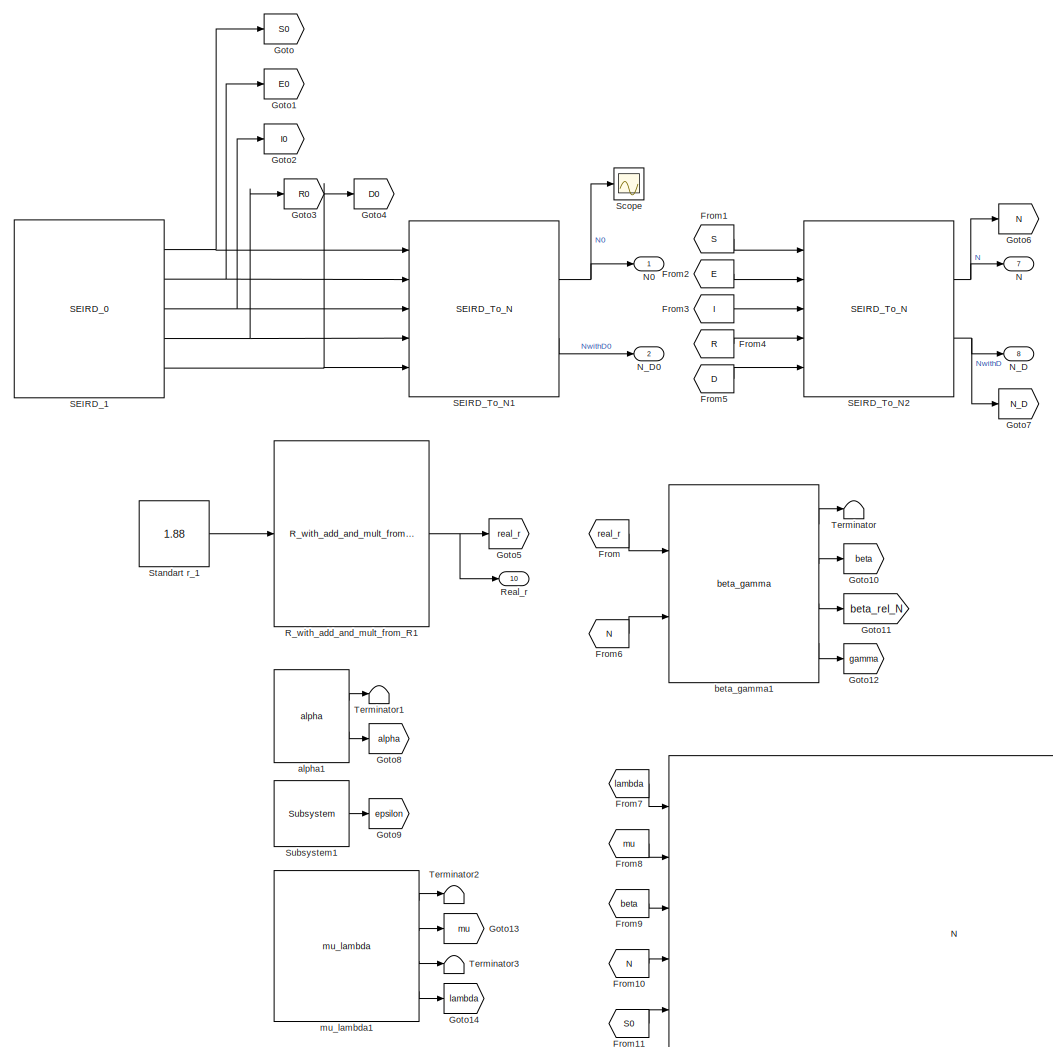
[diagram: SEIRD_Internal_Const - part 1/3, top left region]
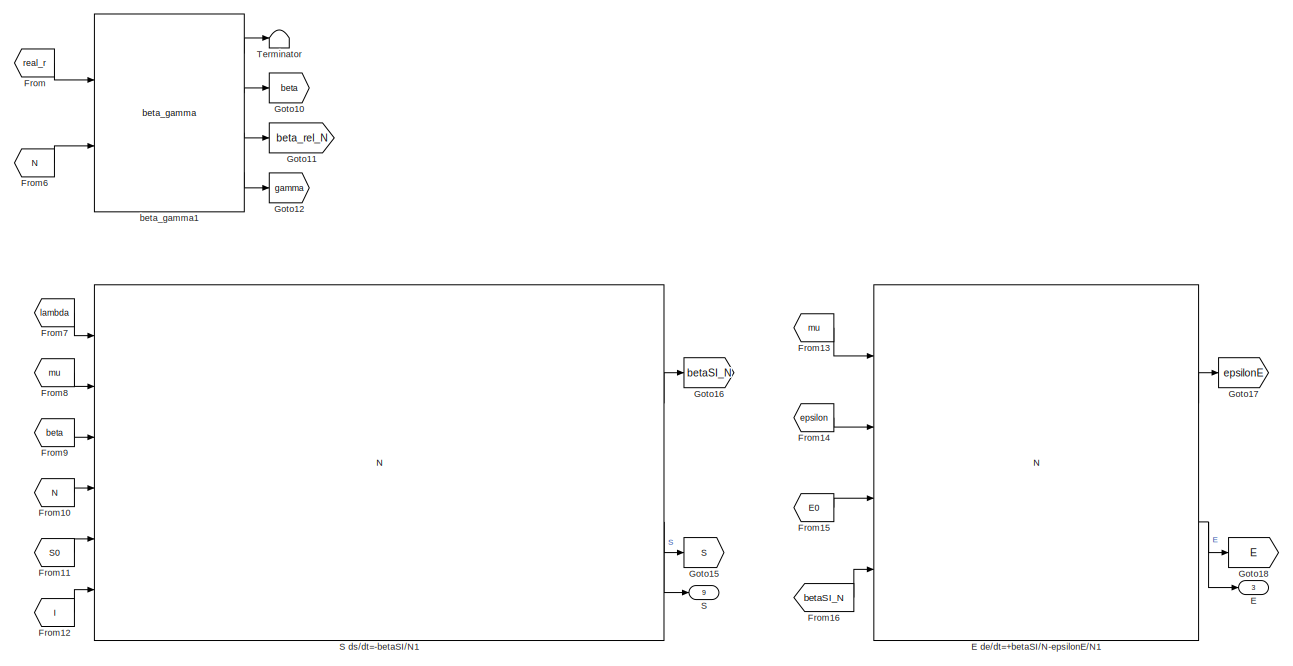
[diagram: SEIRD_Internal_Const - part 2/3, central region]
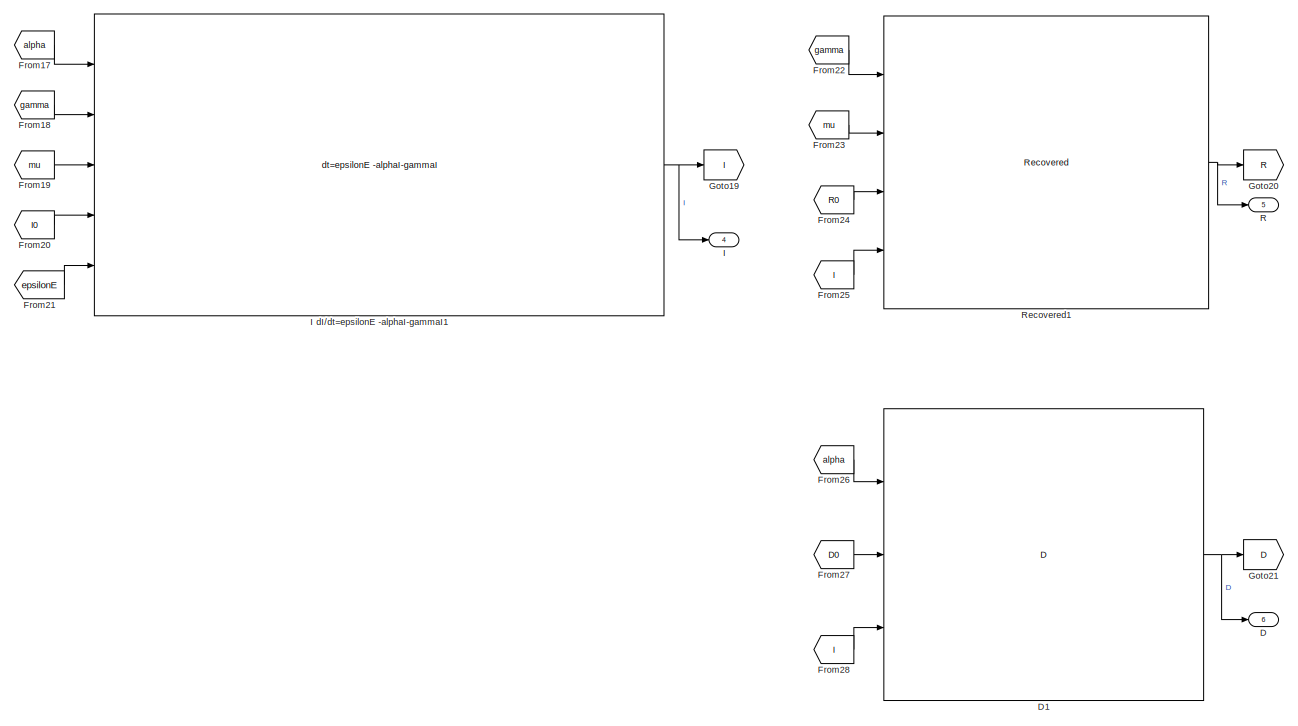
[diagram: SEIRD_Internal_Const - part 3/3, bottom center region]
BLOCK [SubSystem] SEIRD_Internal_Const
  Ports = [0, 10]
  RequestExecContextInheritance = off
BLOCK [Outport] SEIRD_Internal_Const/D
  IconDisplay = Port number
  Port = 6
BLOCK [Reference] SEIRD_Internal_Const/D1  REF=$bdroot/D
  Ports = [3, 1]
  SourceBlock = $bdroot/D
  SourceType = SubSystem
BLOCK [Outport] SEIRD_Internal_Const/E
  IconDisplay = Port number
  Port = 3
BLOCK [Reference] SEIRD_Internal_Const/E de//dt=+betaSI//N-epsilonE//N1  REF=$bdroot/E de//dt=+betaSI//N-epsilonE//N
  Ports = [4, 2]
  SourceBlock = $bdroot/E de//dt=+betaSI//N-epsilonE//N
  SourceType = SubSystem
BLOCK [From] SEIRD_Internal_Const/From
  GotoTag = real_r
BLOCK [From] SEIRD_Internal_Const/From1
  GotoTag = S
BLOCK [From] SEIRD_Internal_Const/From10
  GotoTag = N
BLOCK [From] SEIRD_Internal_Const/From11
  GotoTag = S0
BLOCK [From] SEIRD_Internal_Const/From12
  GotoTag = I
BLOCK [From] SEIRD_Internal_Const/From13
  GotoTag = mu
BLOCK [From] SEIRD_Internal_Const/From14
  GotoTag = epsilon
BLOCK [From] SEIRD_Internal_Const/From15
  GotoTag = E0
BLOCK [From] SEIRD_Internal_Const/From16
  GotoTag = betaSI_N
BLOCK [From] SEIRD_Internal_Const/From17
  GotoTag = alpha
BLOCK [From] SEIRD_Internal_Const/From18
  GotoTag = gamma
BLOCK [From] SEIRD_Internal_Const/From19
  GotoTag = mu
BLOCK [From] SEIRD_Internal_Const/From2
  GotoTag = E
BLOCK [From] SEIRD_Internal_Const/From20
  GotoTag = I0
BLOCK [From] SEIRD_Internal_Const/From21
  GotoTag = epsilonE
BLOCK [From] SEIRD_Internal_Const/From22
  GotoTag = gamma
BLOCK [From] SEIRD_Internal_Const/From23
  GotoTag = mu
BLOCK [From] SEIRD_Internal_Const/From24
  GotoTag = R0
BLOCK [From] SEIRD_Internal_Const/From25
  GotoTag = I
BLOCK [From] SEIRD_Internal_Const/From26
  GotoTag = alpha
BLOCK [From] SEIRD_Internal_Const/From27
  GotoTag = D0
BLOCK [From] SEIRD_Internal_Const/From28
  GotoTag = I
BLOCK [From] SEIRD_Internal_Const/From3
  GotoTag = I
BLOCK [From] SEIRD_Internal_Const/From4
  GotoTag = R
BLOCK [From] SEIRD_Internal_Const/From5
  GotoTag = D
BLOCK [From] SEIRD_Internal_Const/From6
  GotoTag = N
BLOCK [From] SEIRD_Internal_Const/From7
  GotoTag = lambda
BLOCK [From] SEIRD_Internal_Const/From8
  GotoTag = mu
BLOCK [From] SEIRD_Internal_Const/From9
  GotoTag = beta
BLOCK [Goto] SEIRD_Internal_Const/Goto
  GotoTag = S0
BLOCK [Goto] SEIRD_Internal_Const/Goto1
  GotoTag = E0
BLOCK [Goto] SEIRD_Internal_Const/Goto10
  GotoTag = beta
BLOCK [Goto] SEIRD_Internal_Const/Goto11
  GotoTag = beta_rel_N
BLOCK [Goto] SEIRD_Internal_Const/Goto12
  GotoTag = gamma
BLOCK [Goto] SEIRD_Internal_Const/Goto13
  GotoTag = mu
BLOCK [Goto] SEIRD_Internal_Const/Goto14
  GotoTag = lambda
BLOCK [Goto] SEIRD_Internal_Const/Goto15
  GotoTag = S
BLOCK [Goto] SEIRD_Internal_Const/Goto16
  GotoTag = betaSI_N
BLOCK [Goto] SEIRD_Internal_Const/Goto17
  GotoTag = epsilonE
BLOCK [Goto] SEIRD_Internal_Const/Goto18
  GotoTag = E
BLOCK [Goto] SEIRD_Internal_Const/Goto19
  GotoTag = I
BLOCK [Goto] SEIRD_Internal_Const/Goto2
  GotoTag = I0
BLOCK [Goto] SEIRD_Internal_Const/Goto20
  GotoTag = R
BLOCK [Goto] SEIRD_Internal_Const/Goto21
  GotoTag = D
BLOCK [Goto] SEIRD_Internal_Const/Goto3
  GotoTag = R0
BLOCK [Goto] SEIRD_Internal_Const/Goto4
  GotoTag = D0
BLOCK [Goto] SEIRD_Internal_Const/Goto5
  GotoTag = real_r
BLOCK [Goto] SEIRD_Internal_Const/Goto6
  GotoTag = N
BLOCK [Goto] SEIRD_Internal_Const/Goto7
  GotoTag = N_D
BLOCK [Goto] SEIRD_Internal_Const/Goto8
  GotoTag = alpha
BLOCK [Goto] SEIRD_Internal_Const/Goto9
  GotoTag = epsilon
BLOCK [Outport] SEIRD_Internal_Const/I
  IconDisplay = Port number
  Port = 4
BLOCK [Reference] SEIRD_Internal_Const/I dI//dt=epsilonE -alphaI-gammaI1  REF=$bdroot/I dI//dt=epsilonE -alphaI-gammaI
  Ports = [5, 1]
  SourceBlock = $bdroot/I dI//dt=epsilonE -alphaI-gammaI
  SourceType = SubSystem
BLOCK [Outport] SEIRD_Internal_Const/N
  IconDisplay = Port number
  Port = 7
BLOCK [Outport] SEIRD_Internal_Const/N0
  IconDisplay = Port number
BLOCK [Outport] SEIRD_Internal_Const/N_D
  IconDisplay = Port number
  Port = 8
BLOCK [Outport] SEIRD_Internal_Const/N_D0
  IconDisplay = Port number
  Port = 2
BLOCK [Outport] SEIRD_Internal_Const/R
  IconDisplay = Port number
  Port = 5
BLOCK [Reference] SEIRD_Internal_Const/R_with_add_and_mult_from_R1  REF=$bdroot/R_with_add_and_mult_from_R0
  Ports = [1, 1]
  SourceBlock = $bdroot/R_with_add_and_mult_from_R0
  SourceType = SubSystem
BLOCK [Outport] SEIRD_Internal_Const/Real_r
  IconDisplay = Port number
  Port = 10
BLOCK [Reference] SEIRD_Internal_Const/Recovered1  REF=$bdroot/Recovered
  Ports = [4, 1]
  SourceBlock = $bdroot/Recovered
  SourceType = SubSystem
BLOCK [Outport] SEIRD_Internal_Const/S
  IconDisplay = Port number
  Port = 9
BLOCK [Reference] SEIRD_Internal_Const/S ds//dt=-betaSI//N1  REF=$bdroot/S ds//dt=-betaSI//N
  Ports = [6, 2]
  SourceBlock = $bdroot/S ds//dt=-betaSI//N
  SourceType = SubSystem
BLOCK [Reference] SEIRD_Internal_Const/SEIRD_1  REF=$bdroot/SEIRD_0
  Ports = [0, 5]
  SourceBlock = $bdroot/SEIRD_0
  SourceType = SubSystem
BLOCK [Reference] SEIRD_Internal_Const/SEIRD_To_N1  REF=$bdroot/SEIRD_To_N
  Ports = [5, 2]
  SourceBlock = $bdroot/SEIRD_To_N
  SourceType = SubSystem
BLOCK [Reference] SEIRD_Internal_Const/SEIRD_To_N2  REF=$bdroot/SEIRD_To_N
  Ports = [5, 2]
  SourceBlock = $bdroot/SEIRD_To_N
  SourceType = SubSystem
BLOCK [Scope] SEIRD_Internal_Const/Scope
  Floating = off
  NumInputPorts = 1
  Ports = [1]
  ScopeSpecificationString = Simulink.scopes.TimeScopeBlockCfg('CurrentConfiguration', extmgr.ConfigurationSet(extmgr.Configuration('Core','General UI',true),extmgr.Configuration('Core','Source UI',true),extmgr.Configuration('Sources','WiredSimulink',true,'DataLoggingVariableName','ScopeData1'),extmgr.Configuration('Visuals','Time Domain',true),extmgr.Configuration('Tools','Plot Navigation',true),extmgr.Configuration('Tools',...<+58ch>
BLOCK [Constant] SEIRD_Internal_Const/Standart r_1
  Value = 1.88
BLOCK [Reference] SEIRD_Internal_Const/Subsystem1  REF=$bdroot/Subsystem
  Ports = [0, 1]
  SourceBlock = $bdroot/Subsystem
  SourceType = SubSystem
BLOCK [Terminator] SEIRD_Internal_Const/Terminator
BLOCK [Terminator] SEIRD_Internal_Const/Terminator1
BLOCK [Terminator] SEIRD_Internal_Const/Terminator2
BLOCK [Terminator] SEIRD_Internal_Const/Terminator3
BLOCK [Reference] SEIRD_Internal_Const/alpha1  REF=$bdroot/alpha
  Ports = [0, 2]
  SourceBlock = $bdroot/alpha
  SourceType = SubSystem
BLOCK [Reference] SEIRD_Internal_Const/beta_gamma1  REF=$bdroot/beta_gamma
  Ports = [2, 4]
  SourceBlock = $bdroot/beta_gamma
  SourceType = SubSystem
BLOCK [Reference] SEIRD_Internal_Const/mu_lambda1  REF=$bdroot/mu_lambda
  Ports = [0, 4]
  SourceBlock = $bdroot/mu_lambda
  SourceType = SubSystem
BLOCK [SubSystem] SEIRD_To_N
  Ports = [5, 2]
  RequestExecContextInheritance = off
BLOCK [Inport] SEIRD_To_N/D
  IconDisplay = Port number
  Port = 5
BLOCK [Inport] SEIRD_To_N/E
  IconDisplay = Port number
  Port = 2
BLOCK [Inport] SEIRD_To_N/I
  IconDisplay = Port number
  Port = 3
BLOCK [Outport] SEIRD_To_N/N
  IconDisplay = Port number
BLOCK [Outport] SEIRD_To_N/N_D
  IconDisplay = Port number
  Port = 2
BLOCK [Inport] SEIRD_To_N/R
  IconDisplay = Port number
  Port = 4
BLOCK [Inport] SEIRD_To_N/S
  IconDisplay = Port number
BLOCK [Sum] SEIRD_To_N/Sum
  IconShape = round
  InputSameDT = off
  Inputs = |++
  OutDataTypeStr = Inherit: Inherit via internal rule
  Ports = [2, 1]
  SaturateOnIntegerOverflow = off
BLOCK [Sum] SEIRD_To_N/Sum1
  IconShape = round
  InputSameDT = off
  Inputs = |++
  OutDataTypeStr = Inherit: Inherit via internal rule
  Ports = [2, 1]
  SaturateOnIntegerOverflow = off
BLOCK [Sum] SEIRD_To_N/Sum2
  IconShape = round
  InputSameDT = off
  Inputs = |++
  OutDataTypeStr = Inherit: Inherit via internal rule
  Ports = [2, 1]
  SaturateOnIntegerOverflow = off
BLOCK [Sum] SEIRD_To_N/Sum3
  IconShape = round
  InputSameDT = off
  Inputs = |++
  OutDataTypeStr = Inherit: Inherit via internal rule
  Ports = [2, 1]
  SaturateOnIntegerOverflow = off
BLOCK [SubSystem] Split SEIRD
  Ports = [6, 5]
  RequestExecContextInheritance = off
BLOCK [Inport] Split SEIRD/D
  IconDisplay = Port number
  Port = 6
BLOCK [Outport] Split SEIRD/D Splitted
  IconDisplay = Port number
  Port = 5
BLOCK [Inport] Split SEIRD/E
  IconDisplay = Port number
  Port = 3
BLOCK [Outport] Split SEIRD/E Splitted
  IconDisplay = Port number
  Port = 2
BLOCK [Inport] Split SEIRD/I
  IconDisplay = Port number
  Port = 4
BLOCK [Outport] Split SEIRD/I Splitted
  IconDisplay = Port number
  Port = 3
BLOCK [Inport] Split SEIRD/R
  IconDisplay = Port number
  Port = 5
BLOCK [Outport] Split SEIRD/R  Splitted
  IconDisplay = Port number
  Port = 4
BLOCK [Inport] Split SEIRD/S
  IconDisplay = Port number
  Port = 2
BLOCK [Outport] Split SEIRD/S Splitted
  IconDisplay = Port number
BLOCK [Inport] Split SEIRD/Split Rate
  IconDisplay = Port number
BLOCK [Reference] Split SEIRD/SplitD  REF=$bdroot/SplitByTwo
  Ports = [2, 2]
  SourceBlock = $bdroot/SplitByTwo
  SourceType = SubSystem
BLOCK [Reference] Split SEIRD/SplitE  REF=$bdroot/SplitByTwo
  Ports = [2, 2]
  SourceBlock = $bdroot/SplitByTwo
  SourceType = SubSystem
BLOCK [Reference] Split SEIRD/SplitI  REF=$bdroot/SplitByTwo
  Ports = [2, 2]
  SourceBlock = $bdroot/SplitByTwo
  SourceType = SubSystem
BLOCK [Reference] Split SEIRD/SplitR  REF=$bdroot/SplitByTwo
  Ports = [2, 2]
  SourceBlock = $bdroot/SplitByTwo
  SourceType = SubSystem
BLOCK [Reference] Split SEIRD/SplitS  REF=$bdroot/SplitByTwo
  Ports = [2, 2]
  SourceBlock = $bdroot/SplitByTwo
  SourceType = SubSystem
BLOCK [Terminator] Split SEIRD/Terminator
BLOCK [Terminator] Split SEIRD/Terminator1
BLOCK [Terminator] Split SEIRD/Terminator2
BLOCK [Terminator] Split SEIRD/Terminator3
BLOCK [Terminator] Split SEIRD/Terminator4
BLOCK [SubSystem] Split Two time
  Ports = [3, 3]
  RequestExecContextInheritance = off
BLOCK [Inport] Split Two time/Data Flow
  IconDisplay = Port number
  Port = 3
BLOCK [Outport] Split Two time/Remainder
  IconDisplay = Port number
  Port = 3
BLOCK [Inport] Split Two time/Split Rate 1
  IconDisplay = Port number
BLOCK [Inport] Split Two time/Split Rate 2
  IconDisplay = Port number
  Port = 2
BLOCK [SubSystem] Split Two time/SplitByTwo1
  Ports = [2, 2]
  RequestExecContextInheritance = off
BLOCK [Inport] Split Two time/SplitByTwo1/Data Signal
  IconDisplay = Port number
  Port = 2
BLOCK [Product] Split Two time/SplitByTwo1/Product
  InputSameDT = off
  OutDataTypeStr = Inherit: Inherit via internal rule
  Ports = [2, 1]
  RndMeth = Floor
  SaturateOnIntegerOverflow = off
BLOCK [Outport] Split Two time/SplitByTwo1/Remainded part
  IconDisplay = Port number
  Port = 2
BLOCK [Inport] Split Two time/SplitByTwo1/Split Rate
  IconDisplay = Port number
BLOCK [Outport] Split Two time/SplitByTwo1/Splitted part
  IconDisplay = Port number
BLOCK [Sum] Split Two time/SplitByTwo1/Subtract
  InputSameDT = off
  Inputs = +-
  OutDataTypeStr = Inherit: Inherit via internal rule
  Ports = [2, 1]
  SaturateOnIntegerOverflow = off
BLOCK [SubSystem] Split Two time/SplitByTwo2
  Ports = [2, 2]
  RequestExecContextInheritance = off
BLOCK [Inport] Split Two time/SplitByTwo2/Data Signal
  IconDisplay = Port number
  Port = 2
BLOCK [Product] Split Two time/SplitByTwo2/Product
  InputSameDT = off
  OutDataTypeStr = Inherit: Inherit via internal rule
  Ports = [2, 1]
  RndMeth = Floor
  SaturateOnIntegerOverflow = off
BLOCK [Outport] Split Two time/SplitByTwo2/Remainded part
  IconDisplay = Port number
  Port = 2
BLOCK [Inport] Split Two time/SplitByTwo2/Split Rate
  IconDisplay = Port number
BLOCK [Outport] Split Two time/SplitByTwo2/Splitted part
  IconDisplay = Port number
BLOCK [Sum] Split Two time/SplitByTwo2/Subtract
  InputSameDT = off
  Inputs = +-
  OutDataTypeStr = Inherit: Inherit via internal rule
  Ports = [2, 1]
  SaturateOnIntegerOverflow = off
BLOCK [Outport] Split Two time/Splitted
  IconDisplay = Port number
BLOCK [Outport] Split Two time/Splitted rem
  IconDisplay = Port number
  Port = 2
BLOCK [SubSystem] Split by tree
  Ports = [3, 3]
  RequestExecContextInheritance = off
BLOCK [Inport] Split by tree/Data Signal
  IconDisplay = Port number
  Port = 3
BLOCK [Product] Split by tree/Product
  InputSameDT = off
  OutDataTypeStr = Inherit: Inherit via internal rule
  Ports = [2, 1]
  RndMeth = Floor
  SaturateOnIntegerOverflow = off
BLOCK [Product] Split by tree/Product1
  InputSameDT = off
  OutDataTypeStr = Inherit: Inherit via internal rule
  Ports = [2, 1]
  RndMeth = Floor
  SaturateOnIntegerOverflow = off
BLOCK [Outport] Split by tree/Remainded part
  IconDisplay = Port number
  Port = 3
BLOCK [Inport] Split by tree/Split Rate 1
  IconDisplay = Port number
BLOCK [Inport] Split by tree/Split Rate 2
  IconDisplay = Port number
  Port = 2
BLOCK [Outport] Split by tree/Splitted part 1
  IconDisplay = Port number
BLOCK [Outport] Split by tree/Splitted part 2
  IconDisplay = Port number
  Port = 2
BLOCK [Sum] Split by tree/Sum
  IconShape = round
  InputSameDT = off
  Inputs = |+--
  OutDataTypeStr = Inherit: Inherit via internal rule
  Ports = [3, 1]
  SaturateOnIntegerOverflow = off
BLOCK [SubSystem] SplitByTwo
  Ports = [2, 2]
  RequestExecContextInheritance = off
BLOCK [Inport] SplitByTwo/Data Signal
  IconDisplay = Port number
  Port = 2
BLOCK [Product] SplitByTwo/Product
  InputSameDT = off
  OutDataTypeStr = Inherit: Inherit via internal rule
  Ports = [2, 1]
  RndMeth = Floor
  SaturateOnIntegerOverflow = off
BLOCK [Outport] SplitByTwo/Remainded part
  IconDisplay = Port number
  Port = 2
BLOCK [Inport] SplitByTwo/Split Rate
  IconDisplay = Port number
BLOCK [Outport] SplitByTwo/Splitted part
  IconDisplay = Port number
BLOCK [Sum] SplitByTwo/Subtract
  InputSameDT = off
  Inputs = +-
  OutDataTypeStr = Inherit: Inherit via internal rule
  Ports = [2, 1]
  SaturateOnIntegerOverflow = off
BLOCK [Constant] Standart r_0
  Value = 1.88
BLOCK [SubSystem] Subsystem
  Ports = [0, 1]
  RequestExecContextInheritance = off
BLOCK [Goto] Subsystem/Goto7
  GotoTag = epsilon
BLOCK [Product] Subsystem/Product4
  InputSameDT = off
  OutDataTypeStr = Inherit: Inherit via internal rule
  Ports = [2, 1]
  RndMeth = Floor
  SaturateOnIntegerOverflow = off
BLOCK [RandomNumber] Subsystem/Random NumberEpsilon
  Mean = 1
  SampleTime = 0.1
BLOCK [Scope] Subsystem/Scope6
  Floating = off
  NumInputPorts = 1
  Ports = [1]
  ScopeSpecificationString = Simulink.scopes.TimeScopeBlockCfg('CurrentConfiguration', extmgr.ConfigurationSet(extmgr.Configuration('Core','General UI',true),extmgr.Configuration('Core','Source UI',true),extmgr.Configuration('Sources','WiredSimulink',true,'DataLoggingVariableName','ScopeData9'),extmgr.Configuration('Visuals','Time Domain',true,'SerializedDisplays',{struct('MinYLimReal','-9.77505','MaxYLimReal','18.92288','YLa...<+1426ch>
BLOCK [Outport] Subsystem/epsilon
  IconDisplay = Port number
BLOCK [Constant] Subsystem/epsilon_const
  Value = 3.33
BLOCK [SubSystem] alpha
  Ports = [0, 2]
  RequestExecContextInheritance = off
BLOCK [Constant] alpha/Const2
BLOCK [Display] alpha/Display3
  Decimation = 1
  Ports = [1]
BLOCK [Product] alpha/Divide2
  InputSameDT = off
  Inputs = */
  OutDataTypeStr = Inherit: Inherit via internal rule
  Ports = [2, 1]
  RndMeth = Floor
  SaturateOnIntegerOverflow = off
BLOCK [Product] alpha/Product3
  InputSameDT = off
  OutDataTypeStr = Inherit: Inherit via internal rule
  Ports = [2, 1]
  RndMeth = Floor
  SaturateOnIntegerOverflow = off
BLOCK [RandomNumber] alpha/Random NumberAlpha
  Mean = 1
  SampleTime = 0.1
  Variance = 50e-6
BLOCK [Scope] alpha/Scope4
  Floating = off
  NumInputPorts = 1
  Ports = [1]
  ScopeSpecificationString = Simulink.scopes.TimeScopeBlockCfg('CurrentConfiguration', extmgr.ConfigurationSet(extmgr.Configuration('Core','General UI',true),extmgr.Configuration('Core','Source UI',true),extmgr.Configuration('Sources','WiredSimulink',true,'DataLoggingVariableName','ScopeData3'),extmgr.Configuration('Visuals','Time Domain',true,'SerializedDisplays',{struct('MinYLimReal','0.06481','MaxYLimReal','0.06887','YLabe...<+1420ch>
BLOCK [Outport] alpha/alpha
  IconDisplay = Port number
  Port = 2
BLOCK [Outport] alpha/n_nd
  IconDisplay = Port number
BLOCK [Constant] alpha/n_nd_const
  Value = 15
BLOCK [SubSystem] beta_gamma
  Ports = [2, 4]
  RequestExecContextInheritance = off
BLOCK [Constant] beta_gamma/Const1
BLOCK [Display] beta_gamma/Display
  Decimation = 1
  Ports = [1]
BLOCK [Display] beta_gamma/Display1
  Decimation = 1
  Ports = [1]
BLOCK [Display] beta_gamma/Display2
  Decimation = 1
  Ports = [1]
BLOCK [Product] beta_gamma/Divide
  InputSameDT = off
  Inputs = */
  OutDataTypeStr = Inherit: Inherit via internal rule
  Ports = [2, 1]
  RndMeth = Floor
  SaturateOnIntegerOverflow = off
BLOCK [Product] beta_gamma/Divide1
  InputSameDT = off
  Inputs = */
  OutDataTypeStr = Inherit: Inherit via internal rule
  Ports = [2, 1]
  RndMeth = Floor
  SaturateOnIntegerOverflow = off
BLOCK [Product] beta_gamma/Divide3
  InputSameDT = off
  Inputs = */
  OutDataTypeStr = Inherit: Inherit via internal rule
  Ports = [2, 1]
  RndMeth = Floor
  SaturateOnIntegerOverflow = off
BLOCK [From] beta_gamma/From
  GotoTag = beta
BLOCK [Goto] beta_gamma/Goto2
  GotoTag = beta
BLOCK [Goto] beta_gamma/Goto3
  GotoTag = gamma
BLOCK [Inport] beta_gamma/N
  IconDisplay = Port number
  Port = 2
BLOCK [Product] beta_gamma/Product1
  InputSameDT = off
  OutDataTypeStr = Inherit: Inherit via internal rule
  Ports = [2, 1]
  RndMeth = Floor
  SaturateOnIntegerOverflow = off
BLOCK [Product] beta_gamma/Product2
  InputSameDT = off
  OutDataTypeStr = Inherit: Inherit via internal rule
  Ports = [2, 1]
  RndMeth = Floor
  SaturateOnIntegerOverflow = off
BLOCK [Inport] beta_gamma/R_0
  IconDisplay = Port number
BLOCK [RandomNumber] beta_gamma/Random NumberBeta
  Mean = 1
  SampleTime = 0.1
  Variance = 0.0016
BLOCK [RandomNumber] beta_gamma/Random NumberGamma
  Mean = 1
  SampleTime = 0.1
  Variance = 0.0008
BLOCK [Scope] beta_gamma/Scope2
  Floating = off
  NumInputPorts = 1
  Ports = [1]
  ScopeSpecificationString = Simulink.scopes.TimeScopeBlockCfg('CurrentConfiguration', extmgr.ConfigurationSet(extmgr.Configuration('Core','General UI',true),extmgr.Configuration('Core','Source UI',true),extmgr.Configuration('Sources','WiredSimulink',true,'DataLoggingVariableName','ScopeData1'),extmgr.Configuration('Visuals','Time Domain',true,'SerializedDisplays',{struct('MinYLimReal','0.28612','MaxYLimReal','0.52195','YLabe...<+1421ch>
BLOCK [Scope] beta_gamma/Scope3
  Floating = off
  NumInputPorts = 1
  Ports = [1]
  ScopeSpecificationString = Simulink.scopes.TimeScopeBlockCfg('CurrentConfiguration', extmgr.ConfigurationSet(extmgr.Configuration('Core','General UI',true),extmgr.Configuration('Core','Source UI',true),extmgr.Configuration('Sources','WiredSimulink',true,'DataLoggingVariableName','ScopeData2'),extmgr.Configuration('Visuals','Time Domain',true,'SerializedDisplays',{struct('MinYLimReal','0.17774','MaxYLimReal','0.22649','YLabe...<+1421ch>
BLOCK [Outport] beta_gamma/beta
  IconDisplay = Port number
  Port = 2
BLOCK [Outport] beta_gamma/beta_rel_N
  IconDisplay = Port number
  Port = 3
BLOCK [Outport] beta_gamma/gamma
  IconDisplay = Port number
  Port = 4
BLOCK [Outport] beta_gamma/n_id
  IconDisplay = Port number
BLOCK [Constant] beta_gamma/n_id_const
  Value = 5
BLOCK [SubSystem] mu_lambda
  Ports = [0, 4]
  RequestExecContextInheritance = off
BLOCK [Constant] mu_lambda/Const4
  Value = 1000
BLOCK [Constant] mu_lambda/Const6
  Value = 365
BLOCK [Display] mu_lambda/Display4
  Decimation = 1
  Ports = [1]
BLOCK [Display] mu_lambda/Display5
  Decimation = 1
  Ports = [1]
BLOCK [Product] mu_lambda/Divide4
  InputSameDT = off
  Inputs = *//
  OutDataTypeStr = Inherit: Inherit via internal rule
  Ports = [3, 1]
  RndMeth = Floor
  SaturateOnIntegerOverflow = off
BLOCK [Product] mu_lambda/Divide5
  InputSameDT = off
  Inputs = *//
  OutDataTypeStr = Inherit: Inherit via internal rule
  Ports = [3, 1]
  RndMeth = Floor
  SaturateOnIntegerOverflow = off
BLOCK [Constant] mu_lambda/by1_ppl_inYear
  Value = 1000
BLOCK [Constant] mu_lambda/by_1_day
  Value = 365
BLOCK [Outport] mu_lambda/lambda
  IconDisplay = Port number
  Port = 4
BLOCK [Constant] mu_lambda/lambda_const
  Value = 12.9
BLOCK [Outport] mu_lambda/lambda_per1000
  IconDisplay = Port number
  Port = 3
BLOCK [Outport] mu_lambda/mu
  IconDisplay = Port number
  Port = 2
BLOCK [Constant] mu_lambda/mu_const
  Value = 12.9
BLOCK [Outport] mu_lambda/mu_per1000
  IconDisplay = Port number
ANNOTATION D: D dd/dt=alpha I
ANNOTATION E de//dt=+betaSI//N-epsilonE//N: const
ANNOTATION E de//dt=+betaSI//N-epsilonE//N: data
ANNOTATION I dI//dt=epsilonE -alphaI-gammaI: const
ANNOTATION I dI//dt=epsilonE -alphaI-gammaI: data
ANNOTATION Mult_add_to_r: s2 = 1 s1 = 1 0. 5 0.8...
ANNOTATION Recovered: R dr/dt=gamma I
ANNOTATION Recovered: const
ANNOTATION S ds//dt=-betaSI//N: const
ANNOTATION S ds//dt=-betaSI//N: data
ANNOTATION SEIRD_Extternal_Const: const
ANNOTATION Split SEIRD: Split SEIRD at given ratio
ANNOTATION Split Two time: Делим данные на две части, а остаток - еще раз на две части, пропорционально коэффициентам
ANNOTATION Split by tree: делим данные на три части: пропорционально коэффициентам (1 и 2) и остаток
ANNOTATION SplitByTwo: делим данные на две части по величине пропорционально коэффициенту split rate предполагается, что он [0;1]
ANNOTATION mu_lambda: lambda is eq mu in Russian Fed at 2020 check for other country or big agglomeration
ANNOTATION mu_lambda: mu is 12.9 by 1000 peoples for year so by 1 ppl - 12.9/1000 by 1 day - 12.9/1000/365 and lambda is transf too
LINE D/D0:1 -> D/DIntegrator:2
NET D/DIntegrator:1 -> D/D:1, D/Goto2:1, D/Scope4:1
LINE D/I:1 -> D/Product4:2
LINE D/Product4:1 -> D/DIntegrator:1
LINE D/alpha:1 -> D/Product4:1
NET E de//dt=+betaSI//N-epsilonE//N/Add:1 -> E de//dt=+betaSI//N-epsilonE//N/Scope3:1, E de//dt=+betaSI//N-epsilonE//N/Subtract:2
NET E de//dt=+betaSI//N-epsilonE//N/BetaSI_N:1 -> E de//dt=+betaSI//N-epsilonE//N/Add:2, E de//dt=+betaSI//N-epsilonE//N/Scope2:1
LINE E de//dt=+betaSI//N-epsilonE//N/E0:1 -> E de//dt=+betaSI//N-epsilonE//N/EIntegrator:2
NET E de//dt=+betaSI//N-epsilonE//N/EIntegrator:1 -> E de//dt=+betaSI//N-epsilonE//N/E:1, E de//dt=+betaSI//N-epsilonE//N/Goto6:1, E de//dt=+betaSI//N-epsilonE//N/Product:1, E de//dt=+betaSI//N-epsilonE//N/Scope1:1
LINE E de//dt=+betaSI//N-epsilonE//N/From1:1 -> E de//dt=+betaSI//N-epsilonE//N/Product1:2
NET E de//dt=+betaSI//N-epsilonE//N/Product1:1 -> E de//dt=+betaSI//N-epsilonE//N/Scope5:1, E de//dt=+betaSI//N-epsilonE//N/Subtract:1
NET E de//dt=+betaSI//N-epsilonE//N/Product:1 -> E de//dt=+betaSI//N-epsilonE//N/Add:1, E de//dt=+betaSI//N-epsilonE//N/Goto8:1, E de//dt=+betaSI//N-epsilonE//N/Scope4:1, E de//dt=+betaSI//N-epsilonE//N/epsilonE:1
LINE E de//dt=+betaSI//N-epsilonE//N/Subtract:1 -> E de//dt=+betaSI//N-epsilonE//N/EIntegrator:1
LINE E de//dt=+betaSI//N-epsilonE//N/epsilon:1 -> E de//dt=+betaSI//N-epsilonE//N/Product:2
LINE E de//dt=+betaSI//N-epsilonE//N/mu:1 -> E de//dt=+betaSI//N-epsilonE//N/Product1:1
LINE I dI//dt=epsilonE -alphaI-gammaI/Add1:1 -> I dI//dt=epsilonE -alphaI-gammaI/Subtract:2
LINE I dI//dt=epsilonE -alphaI-gammaI/From10:1 -> I dI//dt=epsilonE -alphaI-gammaI/Product1:2
LINE I dI//dt=epsilonE -alphaI-gammaI/From12:1 -> I dI//dt=epsilonE -alphaI-gammaI/Product2:2
LINE I dI//dt=epsilonE -alphaI-gammaI/From1:1 -> I dI//dt=epsilonE -alphaI-gammaI/Product3:2
LINE I dI//dt=epsilonE -alphaI-gammaI/I0:1 -> I dI//dt=epsilonE -alphaI-gammaI/IIntegrator:2
NET I dI//dt=epsilonE -alphaI-gammaI/IIntegrator:1 -> I dI//dt=epsilonE -alphaI-gammaI/Goto9:1, I dI//dt=epsilonE -alphaI-gammaI/I:1, I dI//dt=epsilonE -alphaI-gammaI/Scope2:1
LINE I dI//dt=epsilonE -alphaI-gammaI/Product1:1 -> I dI//dt=epsilonE -alphaI-gammaI/Add1:2
LINE I dI//dt=epsilonE -alphaI-gammaI/Product2:1 -> I dI//dt=epsilonE -alphaI-gammaI/Add1:3
NET I dI//dt=epsilonE -alphaI-gammaI/Product3:1 -> I dI//dt=epsilonE -alphaI-gammaI/Scope5:1, I dI//dt=epsilonE -alphaI-gammaI/Subtract:1
LINE I dI//dt=epsilonE -alphaI-gammaI/Subtract:1 -> I dI//dt=epsilonE -alphaI-gammaI/IIntegrator:1
LINE I dI//dt=epsilonE -alphaI-gammaI/alpha:1 -> I dI//dt=epsilonE -alphaI-gammaI/Product1:1
LINE I dI//dt=epsilonE -alphaI-gammaI/epsilonE:1 -> I dI//dt=epsilonE -alphaI-gammaI/Add1:1
LINE I dI//dt=epsilonE -alphaI-gammaI/gamma:1 -> I dI//dt=epsilonE -alphaI-gammaI/Product2:1
LINE I dI//dt=epsilonE -alphaI-gammaI/mu:1 -> I dI//dt=epsilonE -alphaI-gammaI/Product3:1
LINE Mult_add_to_r/Signal Builder:1 -> Mult_add_to_r/NoLock:1
LINE Mult_add_to_r/Signal Builder:2 -> Mult_add_to_r/With_Lock:1
LINE Period_add_to_r/Add:1 -> Period_add_to_r/Gain:1
LINE Period_add_to_r/Day:1 -> Period_add_to_r/Add:4
NET Period_add_to_r/Gain:1 -> Period_add_to_r/Add_to_R:1, Period_add_to_r/Scope1:1
LINE Period_add_to_r/Month:1 -> Period_add_to_r/Add:2
LINE Period_add_to_r/Quart:1 -> Period_add_to_r/Add:1
LINE Period_add_to_r/Random Number:1 -> Period_add_to_r/Add:5
LINE Period_add_to_r/Week:1 -> Period_add_to_r/Add:3
LINE Period_add_to_r/bias:1 -> Period_add_to_r/Add:6
LINE R_with_add_and_mult/Add1:1 -> R_with_add_and_mult/Product:1
LINE R_with_add_and_mult/Manual Switch:1 -> R_with_add_and_mult/Product:2
LINE R_with_add_and_mult/Mult_add_to_r1:1 -> R_with_add_and_mult/Manual Switch:1
LINE R_with_add_and_mult/Mult_add_to_r1:2 -> R_with_add_and_mult/Manual Switch:2
LINE R_with_add_and_mult/Period_add_to_r1:1 -> R_with_add_and_mult/Add1:2
LINE R_with_add_and_mult/Product:1 -> R_with_add_and_mult/Real_r:1
LINE R_with_add_and_mult/Standart r_1:1 -> R_with_add_and_mult/Add1:1
LINE R_with_add_and_mult_from_R0/Add1:1 -> R_with_add_and_mult_from_R0/Product:1
LINE R_with_add_and_mult_from_R0/Manual Switch:1 -> R_with_add_and_mult_from_R0/Product:2
LINE R_with_add_and_mult_from_R0/Mult_add_to_r1:1 -> R_with_add_and_mult_from_R0/Manual Switch:1
LINE R_with_add_and_mult_from_R0/Mult_add_to_r1:2 -> R_with_add_and_mult_from_R0/Manual Switch:2
LINE R_with_add_and_mult_from_R0/Period_add_to_r1:1 -> R_with_add_and_mult_from_R0/Add1:2
LINE R_with_add_and_mult_from_R0/Product:1 -> R_with_add_and_mult_from_R0/Real_r:1
LINE R_with_add_and_mult_from_R0/Standart_R:1 -> R_with_add_and_mult_from_R0/Add1:1
LINE Recovered/From1:1 -> Recovered/Product1:2
LINE Recovered/I:1 -> Recovered/Product3:2
NET Recovered/Product1:1 -> Recovered/Scope5:1, Recovered/Subtract:1
LINE Recovered/Product3:1 -> Recovered/Subtract:2
LINE Recovered/R0:1 -> Recovered/RIntegrator:2
NET Recovered/RIntegrator:1 -> Recovered/Goto1:1, Recovered/R:1, Recovered/Scope3:1
LINE Recovered/Subtract:1 -> Recovered/RIntegrator:1
LINE Recovered/gamma:1 -> Recovered/Product3:1
LINE Recovered/mu:1 -> Recovered/Product1:1
NET S ds//dt=-betaSI//N/Divide2:1 -> S ds//dt=-betaSI//N/Scope1:1, S ds//dt=-betaSI//N/Subtract:3, S ds//dt=-betaSI//N/betaSI_N:1
LINE S ds//dt=-betaSI//N/From:1 -> S ds//dt=-betaSI//N/Product1:2
LINE S ds//dt=-betaSI//N/I:1 -> S ds//dt=-betaSI//N/Divide2:2
NET S ds//dt=-betaSI//N/N:1 -> S ds//dt=-betaSI//N/Divide2:4, S ds//dt=-betaSI//N/Product:2, S ds//dt=-betaSI//N/Scope2:1
NET S ds//dt=-betaSI//N/Product1:1 -> S ds//dt=-betaSI//N/Scope3:1, S ds//dt=-betaSI//N/Subtract:1
NET S ds//dt=-betaSI//N/Product:1 -> S ds//dt=-betaSI//N/Scope4:1, S ds//dt=-betaSI//N/Subtract:2
LINE S ds//dt=-betaSI//N/S0:1 -> S ds//dt=-betaSI//N/SIntegrator:2
NET S ds//dt=-betaSI//N/SIntegrator:1 -> S ds//dt=-betaSI//N/Divide2:1, S ds//dt=-betaSI//N/Goto4:1, S ds//dt=-betaSI//N/S:1, S ds//dt=-betaSI//N/Scope:1
LINE S ds//dt=-betaSI//N/Subtract:1 -> S ds//dt=-betaSI//N/SIntegrator:1
LINE S ds//dt=-betaSI//N/beta:1 -> S ds//dt=-betaSI//N/Divide2:3
LINE S ds//dt=-betaSI//N/lambda:1 -> S ds//dt=-betaSI//N/Product:1
LINE S ds//dt=-betaSI//N/mu:1 -> S ds//dt=-betaSI//N/Product1:1
LINE SEIRD_0/D0:1 -> SEIRD_0/D_0:1
LINE SEIRD_0/E0:1 -> SEIRD_0/E_0:1
LINE SEIRD_0/I0:1 -> SEIRD_0/I_0:1
LINE SEIRD_0/R0:1 -> SEIRD_0/R_0:1
LINE SEIRD_0/S0:1 -> SEIRD_0/S_0:1
NET SEIRD_Internal_Const/D1:1 -> SEIRD_Internal_Const/D:1, SEIRD_Internal_Const/Goto21:1
LINE SEIRD_Internal_Const/E de//dt=+betaSI//N-epsilonE//N1:1 -> SEIRD_Internal_Const/Goto17:1
NET SEIRD_Internal_Const/E de//dt=+betaSI//N-epsilonE//N1:2 -> SEIRD_Internal_Const/E:1, SEIRD_Internal_Const/Goto18:1
LINE SEIRD_Internal_Const/From10:1 -> SEIRD_Internal_Const/S ds//dt=-betaSI//N1:4
LINE SEIRD_Internal_Const/From11:1 -> SEIRD_Internal_Const/S ds//dt=-betaSI//N1:5
LINE SEIRD_Internal_Const/From12:1 -> SEIRD_Internal_Const/S ds//dt=-betaSI//N1:6
LINE SEIRD_Internal_Const/From13:1 -> SEIRD_Internal_Const/E de//dt=+betaSI//N-epsilonE//N1:1
LINE SEIRD_Internal_Const/From14:1 -> SEIRD_Internal_Const/E de//dt=+betaSI//N-epsilonE//N1:2
LINE SEIRD_Internal_Const/From15:1 -> SEIRD_Internal_Const/E de//dt=+betaSI//N-epsilonE//N1:3
LINE SEIRD_Internal_Const/From16:1 -> SEIRD_Internal_Const/E de//dt=+betaSI//N-epsilonE//N1:4
LINE SEIRD_Internal_Const/From17:1 -> SEIRD_Internal_Const/I dI//dt=epsilonE -alphaI-gammaI1:1
LINE SEIRD_Internal_Const/From18:1 -> SEIRD_Internal_Const/I dI//dt=epsilonE -alphaI-gammaI1:2
LINE SEIRD_Internal_Const/From19:1 -> SEIRD_Internal_Const/I dI//dt=epsilonE -alphaI-gammaI1:3
LINE SEIRD_Internal_Const/From1:1 -> SEIRD_Internal_Const/SEIRD_To_N2:1
LINE SEIRD_Internal_Const/From20:1 -> SEIRD_Internal_Const/I dI//dt=epsilonE -alphaI-gammaI1:4
LINE SEIRD_Internal_Const/From21:1 -> SEIRD_Internal_Const/I dI//dt=epsilonE -alphaI-gammaI1:5
LINE SEIRD_Internal_Const/From22:1 -> SEIRD_Internal_Const/Recovered1:1
LINE SEIRD_Internal_Const/From23:1 -> SEIRD_Internal_Const/Recovered1:2
LINE SEIRD_Internal_Const/From24:1 -> SEIRD_Internal_Const/Recovered1:3
LINE SEIRD_Internal_Const/From25:1 -> SEIRD_Internal_Const/Recovered1:4
LINE SEIRD_Internal_Const/From26:1 -> SEIRD_Internal_Const/D1:1
LINE SEIRD_Internal_Const/From27:1 -> SEIRD_Internal_Const/D1:2
LINE SEIRD_Internal_Const/From28:1 -> SEIRD_Internal_Const/D1:3
LINE SEIRD_Internal_Const/From2:1 -> SEIRD_Internal_Const/SEIRD_To_N2:2
LINE SEIRD_Internal_Const/From3:1 -> SEIRD_Internal_Const/SEIRD_To_N2:3
LINE SEIRD_Internal_Const/From4:1 -> SEIRD_Internal_Const/SEIRD_To_N2:4
LINE SEIRD_Internal_Const/From5:1 -> SEIRD_Internal_Const/SEIRD_To_N2:5
LINE SEIRD_Internal_Const/From6:1 -> SEIRD_Internal_Const/beta_gamma1:2
LINE SEIRD_Internal_Const/From7:1 -> SEIRD_Internal_Const/S ds//dt=-betaSI//N1:1
LINE SEIRD_Internal_Const/From8:1 -> SEIRD_Internal_Const/S ds//dt=-betaSI//N1:2
LINE SEIRD_Internal_Const/From9:1 -> SEIRD_Internal_Const/S ds//dt=-betaSI//N1:3
LINE SEIRD_Internal_Const/From:1 -> SEIRD_Internal_Const/beta_gamma1:1
NET SEIRD_Internal_Const/I dI//dt=epsilonE -alphaI-gammaI1:1 -> SEIRD_Internal_Const/Goto19:1, SEIRD_Internal_Const/I:1
NET SEIRD_Internal_Const/R_with_add_and_mult_from_R1:1 -> SEIRD_Internal_Const/Goto5:1, SEIRD_Internal_Const/Real_r:1
NET SEIRD_Internal_Const/Recovered1:1 -> SEIRD_Internal_Const/Goto20:1, SEIRD_Internal_Const/R:1
LINE SEIRD_Internal_Const/S ds//dt=-betaSI//N1:1 -> SEIRD_Internal_Const/Goto16:1
NET SEIRD_Internal_Const/S ds//dt=-betaSI//N1:2 -> SEIRD_Internal_Const/Goto15:1, SEIRD_Internal_Const/S:1
NET SEIRD_Internal_Const/SEIRD_1:1 -> SEIRD_Internal_Const/Goto:1, SEIRD_Internal_Const/SEIRD_To_N1:1
NET SEIRD_Internal_Const/SEIRD_1:2 -> SEIRD_Internal_Const/Goto1:1, SEIRD_Internal_Const/SEIRD_To_N1:2
NET SEIRD_Internal_Const/SEIRD_1:3 -> SEIRD_Internal_Const/Goto2:1, SEIRD_Internal_Const/SEIRD_To_N1:3
NET SEIRD_Internal_Const/SEIRD_1:4 -> SEIRD_Internal_Const/Goto3:1, SEIRD_Internal_Const/SEIRD_To_N1:4
NET SEIRD_Internal_Const/SEIRD_1:5 -> SEIRD_Internal_Const/Goto4:1, SEIRD_Internal_Const/SEIRD_To_N1:5
NET SEIRD_Internal_Const/SEIRD_To_N1:1 -> SEIRD_Internal_Const/N0:1, SEIRD_Internal_Const/Scope:1
LINE SEIRD_Internal_Const/SEIRD_To_N1:2 -> SEIRD_Internal_Const/N_D0:1
NET SEIRD_Internal_Const/SEIRD_To_N2:1 -> SEIRD_Internal_Const/Goto6:1, SEIRD_Internal_Const/N:1
NET SEIRD_Internal_Const/SEIRD_To_N2:2 -> SEIRD_Internal_Const/Goto7:1, SEIRD_Internal_Const/N_D:1
LINE SEIRD_Internal_Const/Standart r_1:1 -> SEIRD_Internal_Const/R_with_add_and_mult_from_R1:1
LINE SEIRD_Internal_Const/Subsystem1:1 -> SEIRD_Internal_Const/Goto9:1
LINE SEIRD_Internal_Const/alpha1:1 -> SEIRD_Internal_Const/Terminator1:1
LINE SEIRD_Internal_Const/alpha1:2 -> SEIRD_Internal_Const/Goto8:1
LINE SEIRD_Internal_Const/beta_gamma1:1 -> SEIRD_Internal_Const/Terminator:1
LINE SEIRD_Internal_Const/beta_gamma1:2 -> SEIRD_Internal_Const/Goto10:1
LINE SEIRD_Internal_Const/beta_gamma1:3 -> SEIRD_Internal_Const/Goto11:1
LINE SEIRD_Internal_Const/beta_gamma1:4 -> SEIRD_Internal_Const/Goto12:1
LINE SEIRD_Internal_Const/mu_lambda1:1 -> SEIRD_Internal_Const/Terminator2:1
LINE SEIRD_Internal_Const/mu_lambda1:2 -> SEIRD_Internal_Const/Goto13:1
LINE SEIRD_Internal_Const/mu_lambda1:3 -> SEIRD_Internal_Const/Terminator3:1
LINE SEIRD_Internal_Const/mu_lambda1:4 -> SEIRD_Internal_Const/Goto14:1
LINE SEIRD_To_N/D:1 -> SEIRD_To_N/Sum3:2
LINE SEIRD_To_N/E:1 -> SEIRD_To_N/Sum:2
LINE SEIRD_To_N/I:1 -> SEIRD_To_N/Sum1:1
LINE SEIRD_To_N/R:1 -> SEIRD_To_N/Sum1:2
LINE SEIRD_To_N/S:1 -> SEIRD_To_N/Sum:1
LINE SEIRD_To_N/Sum1:1 -> SEIRD_To_N/Sum2:2
NET SEIRD_To_N/Sum2:1 -> SEIRD_To_N/N:1, SEIRD_To_N/Sum3:1
LINE SEIRD_To_N/Sum3:1 -> SEIRD_To_N/N_D:1
LINE SEIRD_To_N/Sum:1 -> SEIRD_To_N/Sum2:1
LINE Split SEIRD/D:1 -> Split SEIRD/SplitD:2
LINE Split SEIRD/E:1 -> Split SEIRD/SplitE:2
LINE Split SEIRD/I:1 -> Split SEIRD/SplitI:2
LINE Split SEIRD/R:1 -> Split SEIRD/SplitR:2
LINE Split SEIRD/S:1 -> Split SEIRD/SplitS:2
NET Split SEIRD/Split Rate:1 -> Split SEIRD/SplitD:1, Split SEIRD/SplitE:1, Split SEIRD/SplitI:1, Split SEIRD/SplitR:1, Split SEIRD/SplitS:1
LINE Split SEIRD/SplitD:1 -> Split SEIRD/D Splitted:1
LINE Split SEIRD/SplitD:2 -> Split SEIRD/Terminator4:1
LINE Split SEIRD/SplitE:1 -> Split SEIRD/E Splitted:1
LINE Split SEIRD/SplitE:2 -> Split SEIRD/Terminator1:1
LINE Split SEIRD/SplitI:1 -> Split SEIRD/I Splitted:1
LINE Split SEIRD/SplitI:2 -> Split SEIRD/Terminator2:1
LINE Split SEIRD/SplitR:1 -> Split SEIRD/R  Splitted:1
LINE Split SEIRD/SplitR:2 -> Split SEIRD/Terminator3:1
LINE Split SEIRD/SplitS:1 -> Split SEIRD/S Splitted:1
LINE Split SEIRD/SplitS:2 -> Split SEIRD/Terminator:1
LINE Split Two time/Data Flow:1 -> Split Two time/SplitByTwo1:2
LINE Split Two time/Split Rate 1:1 -> Split Two time/SplitByTwo1:1
LINE Split Two time/Split Rate 2:1 -> Split Two time/SplitByTwo2:1
NET Split Two time/SplitByTwo1/Data Signal:1 -> Split Two time/SplitByTwo1/Product:2, Split Two time/SplitByTwo1/Subtract:1
NET Split Two time/SplitByTwo1/Product:1 -> Split Two time/SplitByTwo1/Splitted part:1, Split Two time/SplitByTwo1/Subtract:2
LINE Split Two time/SplitByTwo1/Split Rate:1 -> Split Two time/SplitByTwo1/Product:1
LINE Split Two time/SplitByTwo1/Subtract:1 -> Split Two time/SplitByTwo1/Remainded part:1
LINE Split Two time/SplitByTwo1:1 -> Split Two time/Splitted:1
LINE Split Two time/SplitByTwo1:2 -> Split Two time/SplitByTwo2:2
NET Split Two time/SplitByTwo2/Data Signal:1 -> Split Two time/SplitByTwo2/Product:2, Split Two time/SplitByTwo2/Subtract:1
NET Split Two time/SplitByTwo2/Product:1 -> Split Two time/SplitByTwo2/Splitted part:1, Split Two time/SplitByTwo2/Subtract:2
LINE Split Two time/SplitByTwo2/Split Rate:1 -> Split Two time/SplitByTwo2/Product:1
LINE Split Two time/SplitByTwo2/Subtract:1 -> Split Two time/SplitByTwo2/Remainded part:1
LINE Split Two time/SplitByTwo2:1 -> Split Two time/Splitted rem:1
LINE Split Two time/SplitByTwo2:2 -> Split Two time/Remainder:1
NET Split by tree/Data Signal:1 -> Split by tree/Product1:2, Split by tree/Product:2, Split by tree/Sum:1
NET Split by tree/Product1:1 -> Split by tree/Splitted part 2:1, Split by tree/Sum:3
NET Split by tree/Product:1 -> Split by tree/Splitted part 1:1, Split by tree/Sum:2
LINE Split by tree/Split Rate 1:1 -> Split by tree/Product:1
LINE Split by tree/Split Rate 2:1 -> Split by tree/Product1:1
LINE Split by tree/Sum:1 -> Split by tree/Remainded part:1
NET SplitByTwo/Data Signal:1 -> SplitByTwo/Product:2, SplitByTwo/Subtract:1
NET SplitByTwo/Product:1 -> SplitByTwo/Splitted part:1, SplitByTwo/Subtract:2
LINE SplitByTwo/Split Rate:1 -> SplitByTwo/Product:1
LINE SplitByTwo/Subtract:1 -> SplitByTwo/Remainded part:1
NET Subsystem/Product4:1 -> Subsystem/Goto7:1, Subsystem/Scope6:1, Subsystem/epsilon:1
LINE Subsystem/Random NumberEpsilon:1 -> Subsystem/Product4:2
LINE Subsystem/epsilon_const:1 -> Subsystem/Product4:1
LINE alpha/Const2:1 -> alpha/Divide2:1
NET alpha/Divide2:1 -> alpha/Display3:1, alpha/Product3:1
NET alpha/Product3:1 -> alpha/Scope4:1, alpha/alpha:1
LINE alpha/Random NumberAlpha:1 -> alpha/Product3:2
NET alpha/n_nd_const:1 -> alpha/Divide2:2, alpha/n_nd:1
LINE beta_gamma/Const1:1 -> beta_gamma/Divide1:1
NET beta_gamma/Divide1:1 -> beta_gamma/Display1:1, beta_gamma/Product2:1
NET beta_gamma/Divide3:1 -> beta_gamma/Display2:1, beta_gamma/beta_rel_N:1
NET beta_gamma/Divide:1 -> beta_gamma/Display:1, beta_gamma/Product1:1
LINE beta_gamma/From:1 -> beta_gamma/Divide3:1
LINE beta_gamma/N:1 -> beta_gamma/Divide3:2
NET beta_gamma/Product1:1 -> beta_gamma/Goto2:1, beta_gamma/Scope2:1, beta_gamma/beta:1
NET beta_gamma/Product2:1 -> beta_gamma/Goto3:1, beta_gamma/Scope3:1, beta_gamma/gamma:1
LINE beta_gamma/R_0:1 -> beta_gamma/Divide:1
LINE beta_gamma/Random NumberBeta:1 -> beta_gamma/Product1:2
LINE beta_gamma/Random NumberGamma:1 -> beta_gamma/Product2:2
NET beta_gamma/n_id_const:1 -> beta_gamma/Divide1:2, beta_gamma/Divide:2, beta_gamma/n_id:1
LINE mu_lambda/Const4:1 -> mu_lambda/Divide5:2
LINE mu_lambda/Const6:1 -> mu_lambda/Divide5:3
NET mu_lambda/Divide4:1 -> mu_lambda/Display4:1, mu_lambda/mu:1
NET mu_lambda/Divide5:1 -> mu_lambda/Display5:1, mu_lambda/lambda:1
LINE mu_lambda/by1_ppl_inYear:1 -> mu_lambda/Divide4:2
LINE mu_lambda/by_1_day:1 -> mu_lambda/Divide4:3
NET mu_lambda/lambda_const:1 -> mu_lambda/Divide5:1, mu_lambda/lambda_per1000:1
NET mu_lambda/mu_const:1 -> mu_lambda/Divide4:1, mu_lambda/mu_per1000:1
note: NET lines group one-source signal fan-out (src -> all destinations, sorted); 1:1 wires keep LINE
